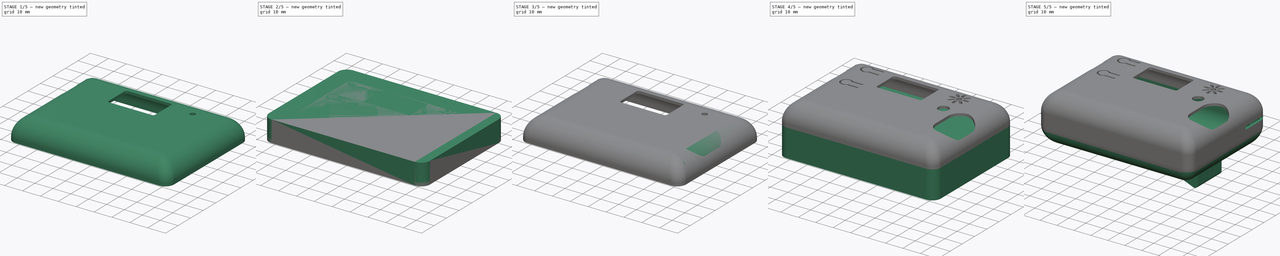
[diagram: build sequence overview — one tinted view per stage of 5, left to right]
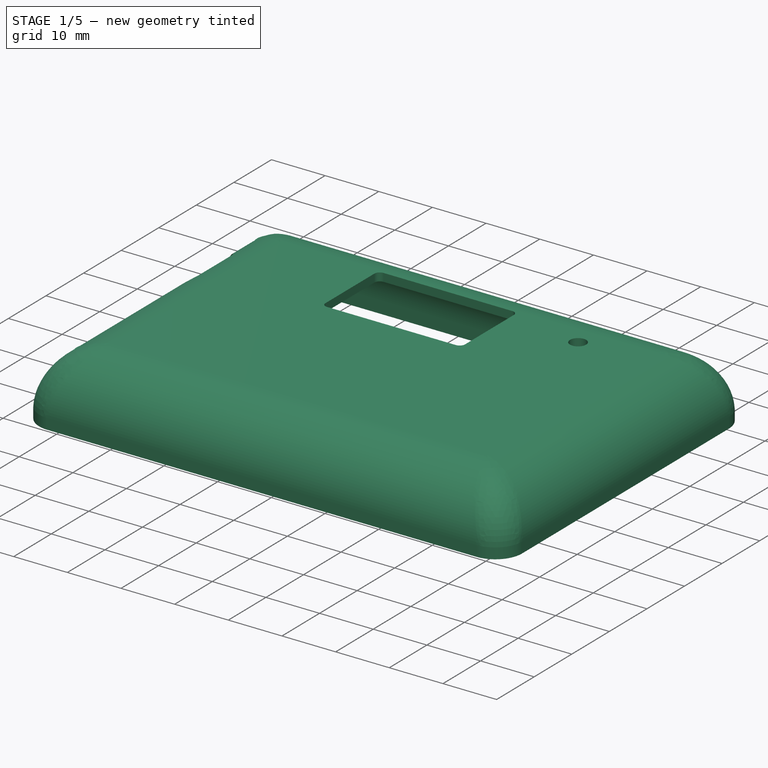
[diagram: stage 1 of 5 — iso view after this stage's code; geometry added in this stage tinted green]
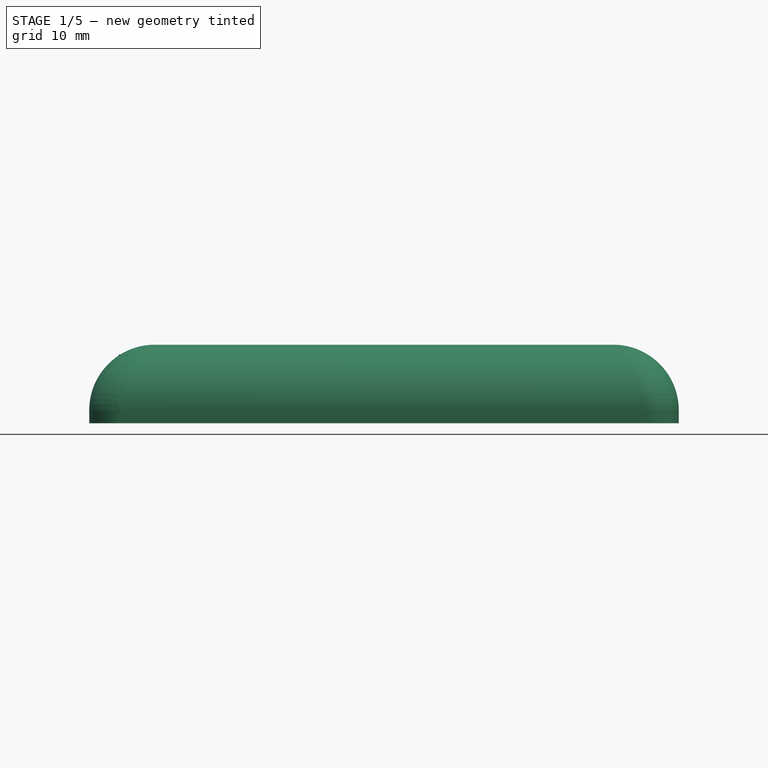
[diagram: stage 1 of 5 — front view after this stage's code; geometry added in this stage tinted green]
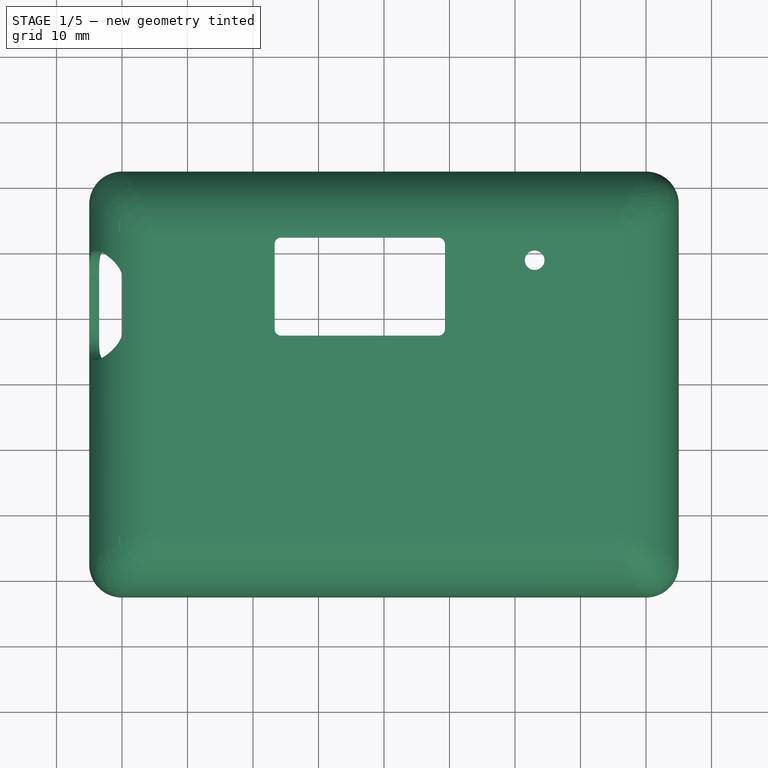
[diagram: stage 1 of 5 — top view after this stage's code; geometry added in this stage tinted green]
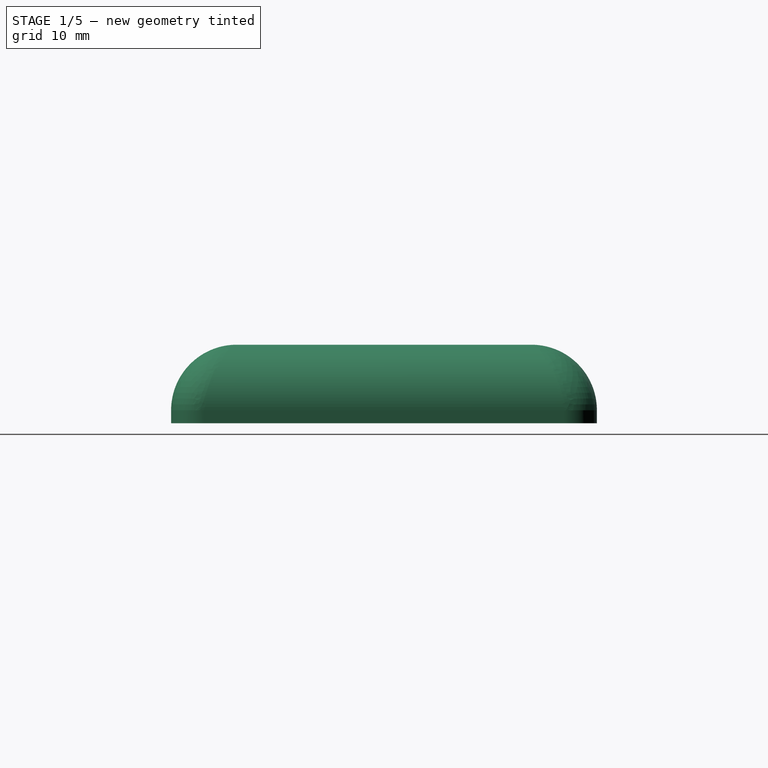
[diagram: stage 1 of 5 — right view after this stage's code; geometry added in this stage tinted green]
FCSTD DOCUMENT  (FreeCAD 1.0R39109 (Git))
Label: DC33_Cnet_Badge_Case
License: All rights reserved
LicenseURL: https://en.wikipedia.org/wiki/All_rights_reserved
objects: Sketcher::SketchObject×29, Part::Feature×27, App::Part×19, PartDesign::Pocket×19, PartDesign::SubShapeBinder×11, PartDesign::Pad×10, PartDesign::Body×4, PartDesign::Fillet×3, PartDesign::Thickness×3, PartDesign::PolarPattern×2, Part::Part2DObjectPython×2
note: 211 computed .brp shape members not serialized (recipe doc carries the construction recipe); baked Part::Feature solids carry a one-line shape summary decoded from their .brp

FEATURE [PartDesign::Body] Body001  label="Top Case - CNet Logo"
  AllowCompound = false
  Group = -> [Sketch005,Pad003,Binder003,Fillet001,Thickness001,Binder004,Sketch008,Pocket002,Sketch009,Pocket003,Binder005,Sketch010,Pocket004,Binder006,Sketch012,Pad004,Sketch013,Pocket006,Sketch016,Pocket007,PolarPattern,Sketch017,Pocket008,Sketch018,Pad007,ShapeString,Sketch022,Pocket014,Sketch023,Pocket015,Pocket016]
  Origin = -> Origin010
  Tip = -> Pocket016
FEATURE [Part::Feature] Part__Feature044  label="Vibra007"
  Placement = pos=(190.11,-69.45,1.595) rot=(0,0,1;1.5708rad)
  shape: bbox 10 x 10.97 x 3 mm, 7 faces (baked)
FEATURE [Part::Feature] Part__Feature045  label="PinSocket_2x03_P2.54mm_Vertical005"
  Placement = pos=(193.387,-82.475,1.595) rot=(0,0,1;0rad)
  shape: bbox 5.08 x 7.62 x 11.6 mm, 166 faces (baked)
FEATURE [Part::Feature] Part__Feature046  label="Buzz007"
  Placement = pos=(178.5,-61.69,1.595) rot=(0,0,1;1.5708rad)
  shape: bbox 12 x 12 x 13 mm, 9 faces (baked)
FEATURE [Part::Feature] Part__Feature047  label="HiLetGo_GPS_Antenna006"
  Placement = pos=(137.5,-94.5,1.595) rot=(0,0,1;0rad)
  shape: bbox 25 x 25 x 10 mm, 10 faces (baked)
FEATURE [Part::Feature] Part__Feature048  label="heltec_wifi_32_asm008"
  Placement = pos=(146.93,-68.07,3.595) rot=(1,0,0;1.5708rad)
  shape: bbox 51.75 x 25.3 x 16.01 mm, 1494 faces (baked)
FEATURE [Part::Feature] Part__Feature049  label="HiLetGo_GPS_Module006"
  Placement = pos=(169,-94.5,3.095) rot=(0,0,1;3.14159rad)
  shape: bbox 36 x 26 x 7 mm, 117 faces (baked)
FEATURE [Part::Feature] Part__Feature050  label="Tactile_Switch-13mm001"
  Placement = pos=(178.47,-74.55,1.595) rot=(0,0,1;3.14159rad)
  shape: bbox 9 x 6 x 13 mm, 89 faces (baked)
FEATURE [Part::Feature] Part__Feature051  label="LiPo006"
  Placement = pos=(152.5,-94.5,-6.085) rot=(0,1,0;3.14159rad)
  shape: bbox 40 x 25.99 x 12.99 mm, 14 faces (baked)
FEATURE [Part::Feature] Part__Feature052  label="DC33_Cnet_Badge_Main_PCB005"
  shape: bbox 101 x 58 x 1.51 mm, 76 faces (baked)
FEATURE [App::Part] DC33_Cnet_Badge_Main_006  label="DC33_Cnet_Badge_Main 006"
  Group = -> [Part__Feature044,Part__Feature045,Part__Feature046,Part__Feature047,Part__Feature048,Part__Feature049,Part__Feature050,Part__Feature051,Part__Feature052]
  Origin = -> Origin016
  Placement = pos=(-155.5,80.5,0) rot=(0,0,1;0rad)
FEATURE [PartDesign::SubShapeBinder] Binder007
  BindCopyOnChange = 0
  BindMode = 0
  ClaimChildren = false
  Context = -> Body003 [Binder007.]
  Fuse = false
  MakeFace = true
  OffsetFill = false
  OffsetIntersection = false
  OffsetJoinType = 0
  OffsetOpenResult = false
  PartialLoad = false
  Refine = true
  Relative = true
  Support = -> [DC33_Cnet_Badge_Main_007[Part__Feature061.Edge89,Part__Feature061.Edge143,Part__Feature061.Edge86,Part__Feature061.Edge114]]
  _Version = 2
FEATURE [PartDesign::SubShapeBinder] Binder008
  BindCopyOnChange = 0
  BindMode = 0
  ClaimChildren = false
  Context = -> Body003 [Binder008.]
  Fuse = false
  MakeFace = true
  OffsetFill = false
  OffsetIntersection = false
  OffsetJoinType = 0
  OffsetOpenResult = false
  PartialLoad = false
  Refine = true
  Relative = true
  Support = -> [DC33_Cnet_Badge_Main_007[heltec_wifi_32_asm003.Part__Feature057.Edge754,heltec_wifi_32_asm003.Part__Feature057.Edge749,heltec_wifi_32_asm003.Part__Feature057.Edge760,heltec_wifi_32_asm003.Part__Feature057.Edge758]]
  _Version = 2
FEATURE [PartDesign::SubShapeBinder] Binder009
  BindCopyOnChange = 0
  BindMode = 0
  ClaimChildren = false
  Context = -> Body003 [Binder009.]
  Fuse = false
  MakeFace = true
  OffsetFill = false
  OffsetIntersection = false
  OffsetJoinType = 0
  OffsetOpenResult = false
  PartialLoad = false
  Refine = true
  Relative = true
  Support = -> [DC33_Cnet_Badge_Main_007[Buzz002.Part__Feature055.Edge6]]
  _Version = 2
FEATURE [PartDesign::SubShapeBinder] Binder010
  BindCopyOnChange = 0
  BindMode = 0
  ClaimChildren = false
  Context = -> Body003 [Binder010.]
  Fuse = false
  MakeFace = true
  OffsetFill = false
  OffsetIntersection = false
  OffsetJoinType = 0
  OffsetOpenResult = false
  PartialLoad = false
  Refine = true
  Relative = true
  Support = -> [DC33_Cnet_Badge_Main_007[heltec_wifi_32_asm003.Part__Feature057.Edge96,heltec_wifi_32_asm003.Part__Feature057.Edge1239,heltec_wifi_32_asm003.Part__Feature057.Edge92,heltec_wifi_32_asm003.Part__Feature057.Edge1240]]
  _Version = 2
FEATURE [Part::Feature] Part__Feature053  label="Vibra008"
  shape: bbox 10.97 x 10 x 3 mm, 7 faces (baked)
FEATURE [Part::Feature] Part__Feature054  label="PinSocket_2x03_P254mm_Vertical001"
  shape: bbox 5.08 x 7.62 x 10.1 mm, 196 faces (baked)
FEATURE [Part::Feature] Part__Feature055  label="Buzz009"
  shape: bbox 12 x 12 x 13 mm, 9 faces (baked)
FEATURE [App::Part] Buzz002  label="Buzz008"
  Group = -> [Part__Feature055]
  Origin = -> Origin019
  Placement = pos=(178.5,-61.69,1.65) rot=(0,0,-1;1.5708rad)
FEATURE [Part::Feature] Part__Feature056  label="HiLetGo_GPS_Antenna008"
  shape: bbox 25 x 25 x 10 mm, 10 faces (baked)
FEATURE [App::Part] HiLetGo_GPS_Antenna001  label="HiLetGo_GPS_Antenna007"
  Group = -> [Part__Feature056]
  Origin = -> Origin020
  Placement = pos=(134,-94.5,1.65) rot=(0,0,1;0rad)
FEATURE [Part::Feature] Part__Feature057  label="heltec_wifi_32_asm009"
  shape: bbox 51.75 x 16.01 x 25.3 mm, 1494 faces (baked)
FEATURE [Part::Feature] Part__Feature058  label="HiLetGo_GPS_Module008"
  shape: bbox 36 x 26 x 7 mm, 117 faces (baked)
FEATURE [App::Part] HiLetGo_GPS_Module001  label="HiLetGo_GPS_Module007"
  Group = -> [Part__Feature058]
  Origin = -> Origin022
  Placement = pos=(167,-94.5,3.15) rot=(0,0,1;3.14159rad)
FEATURE [Part::Feature] Part__Feature059  label="LiPo008"
  shape: bbox 40 x 25.99 x 12.99 mm, 14 faces (baked)
FEATURE [App::Part] LiPo001  label="LiPo007"
  Group = -> [Part__Feature059]
  Origin = -> Origin023
  Placement = pos=(152.5,-94.5,-5.55) rot=(1,0,0;3.14159rad)
FEATURE [Part::Feature] Part__Feature060  label="LoRa_Antenna003"
  shape: bbox 67 x 9.815 x 8.5 mm, 26 faces (baked)
FEATURE [App::Part] LoRa_Antenna001  label="LoRa_Antenna002"
  Group = -> [Part__Feature060]
  Origin = -> Origin024
  Placement = pos=(164.5,-62,-6.05) rot=(0,1,0;3.14159rad)
FEATURE [Part::Feature] Part__Feature061  label="DC33_Cnet_Badge_Main_PCB006"
  shape: bbox 101 x 58 x 1.6 mm, 72 faces (baked)
FEATURE [App::Part] PinSocket_2x03_P2_54mm_Vertical001  label="PinSocket_2x03_P2.54mm_Vertical006"
  Group = -> [Part__Feature054]
  Origin = -> Origin018
  Placement = pos=(192.8,-77.62,1.65) rot=(0,0,1;0rad)
FEATURE [Part::Part2DObjectPython] ShapeString001  # Draft 2D object (typed FeaturePython)
  FontFile = D:/My Drive/Dev/Arduino/DC33_Cnet_Badge/Software/Fonts/seven_segment/Seven Segment.ttf
  Fuse = false
  Justification = 6
  JustificationReference = 0
  KeepLeftMargin = false
  MakeFace = true
  ObliqueAngle = 0
  Placement = pos=(-31.75,-19,0) rot=(0,0,1;0rad)
  ScaleToSize = true
  Size = 10
  String = CompuNet
  Tracking = 0
FEATURE [Sketcher::SketchObject] Sketch024
  ArcFitTolerance = 1e-06
  AttachmentOffset = pos=(0,0,2) rot=(0,0,1;0rad)
  AttachmentSupport = -> [XY_Plane026]
  FullyConstrained = true
  MakeInternals = false
  MapMode = 5
  Placement = pos=(0,0,2) rot=(0,0,1;0rad)
  sketch-geometry (12):
    g0: LineSegment StartX=-45 StartY=27.5 StartZ=0 EndX=-45 EndY=-27.5 EndZ=0
    g1: LineSegment StartX=-40 StartY=-32.5 StartZ=0 EndX=40 EndY=-32.5 EndZ=0
    g2: LineSegment StartX=45 StartY=-27.5 StartZ=0 EndX=45 EndY=27.5 EndZ=0
    g3: LineSegment StartX=40 StartY=32.5 StartZ=0 EndX=-40 EndY=32.5 EndZ=0
    g4: ArcOfCircle CenterX=-40 CenterY=27.5 CenterZ=0 NormalX=0 NormalY=0 NormalZ=1 AngleXU=0 Radius=5 StartAngle=1.5708 EndAngle=3.14159
    g5: GeomPoint [constr] X=-45 Y=32.5 Z=0
    g6: ArcOfCircle CenterX=40 CenterY=27.5 CenterZ=0 NormalX=0 NormalY=0 NormalZ=1 AngleXU=0 Radius=5 StartAngle=0 EndAngle=1.5708
    g7: GeomPoint [constr] X=45 Y=32.5 Z=0
    g8: ArcOfCircle CenterX=40 CenterY=-27.5 CenterZ=0 NormalX=0 NormalY=0 NormalZ=1 AngleXU=0 Radius=5 StartAngle=4.71239 EndAngle=6.28319
    g9: GeomPoint [constr] X=45 Y=-32.5 Z=0
    g10: ArcOfCircle CenterX=-40 CenterY=-27.5 CenterZ=0 NormalX=0 NormalY=0 NormalZ=1 AngleXU=0 Radius=5 StartAngle=3.14159 EndAngle=4.71239
    g11: GeomPoint [constr] X=-45 Y=-32.5 Z=0
  constraints (27):
    c: Vertical(g0)
    c: Vertical(g2)
    c: Horizontal(g1)
    c: Horizontal(g3)
    c: DistanceX(g5,g7) = 90
    c: DistanceY(g9,g7) = 65
    c: Symmetric(g5,g9,g-1)
    c: PointOnObject(g5,g0)
    c: PointOnObject(g5,g3)
    c: Tangent(g0,g4) = -1.5708
    c: Tangent(g3,g4) = -1.5708
    c: PointOnObject(g7,g3)
    c: PointOnObject(g7,g2)
    c: Tangent(g3,g6) = -1.5708
    c: Tangent(g2,g6) = -1.5708
    c: PointOnObject(g9,g2)
    c: PointOnObject(g9,g1)
    c: Tangent(g2,g8) = -1.5708
    c: Tangent(g1,g8) = -1.5708
    c: PointOnObject(g11,g1)
    c: PointOnObject(g11,g0)
    c: Tangent(g1,g10) = -1.5708
    c: Tangent(g0,g10) = -1.5708
    c: Radius(g4) = 5
    c: Equal(g4,g6)
    c: Equal(g4,g8)
    c: Equal(g4,g10)
FEATURE [PartDesign::Pad] Pad009
  Direction = (0,0,1)
  Length = 12
  Length2 = 10
  Profile = -> Sketch024
  ReferenceAxis = -> Sketch024 [N_Axis]
  Refine = true
  Suppressed = false
  Type = 0
FEATURE [PartDesign::Fillet] Fillet002
  Base = -> Pad009 [Edge10]
  BaseFeature = -> Pad009
  Radius = 10
  Refine = true
  SupportTransform = false
  Suppressed = false
  UseAllEdges = false
FEATURE [Sketcher::SketchObject] Sketch025
  ArcFitTolerance = 1e-06
  AttachmentSupport = -> [XY_Plane026]
  ExternalGeometry = -> [Binder008]
  FullyConstrained = true
  MakeInternals = false
  MapMode = 5
  sketch-geometry (12):
    g0: LineSegment StartX=-16.695 StartY=21.28 StartZ=0 EndX=-16.695 EndY=8.28 EndZ=0
    g1: LineSegment StartX=-15.695 StartY=7.28 StartZ=0 EndX=8.305 EndY=7.28 EndZ=0
    g2: LineSegment StartX=9.305 StartY=8.28 StartZ=0 EndX=9.305 EndY=21.28 EndZ=0
    g3: LineSegment StartX=8.305 StartY=22.28 StartZ=0 EndX=-15.695 EndY=22.28 EndZ=0
    g4: ArcOfCircle CenterX=-15.695 CenterY=21.28 CenterZ=0 NormalX=0 NormalY=0 NormalZ=1 AngleXU=0 Radius=1 StartAngle=1.5708 EndAngle=3.14159
    g5: GeomPoint [constr] X=-16.695 Y=22.28 Z=0
    g6: ArcOfCircle CenterX=8.305 CenterY=21.28 CenterZ=0 NormalX=0 NormalY=0 NormalZ=1 AngleXU=0 Radius=1 StartAngle=1.1e-15 EndAngle=1.5708
    g7: GeomPoint [constr] X=9.305 Y=22.28 Z=0
    g8: ArcOfCircle CenterX=8.305 CenterY=8.28 CenterZ=0 NormalX=0 NormalY=0 NormalZ=1 AngleXU=0 Radius=1 StartAngle=4.71239 EndAngle=6.28319
    g9: GeomPoint [constr] X=9.305 Y=7.28 Z=0
    g10: ArcOfCircle CenterX=-15.695 CenterY=8.28 CenterZ=0 NormalX=0 NormalY=0 NormalZ=1 AngleXU=0 Radius=1 StartAngle=3.14159 EndAngle=4.71239
    g11: GeomPoint [constr] X=-16.695 Y=7.28 Z=0
  constraints (26):
    c: Vertical(g0)
    c: Vertical(g2)
    c: Horizontal(g1)
    c: Horizontal(g3)
    c: Coincident(g5,g-6)
    c: Coincident(g9,g-5)
    c: PointOnObject(g5,g0)
    c: PointOnObject(g5,g3)
    c: Tangent(g0,g4) = -1.5708
    c: Tangent(g3,g4) = -1.5708
    c: PointOnObject(g7,g3)
    c: PointOnObject(g7,g2)
    c: Tangent(g3,g6) = -1.5708
    c: Tangent(g2,g6) = -1.5708
    c: PointOnObject(g9,g2)
    c: PointOnObject(g9,g1)
    c: Tangent(g2,g8) = -1.5708
    c: Tangent(g1,g8) = -1.5708
    c: PointOnObject(g11,g1)
    c: PointOnObject(g11,g0)
    c: Tangent(g1,g10) = -1.5708
    c: Tangent(g0,g10) = -1.5708
    c: Radius(g4) = 1
    c: Equal(g4,g6)
    c: Equal(g4,g10)
    c: Equal(g4,g8)
FEATURE [Sketcher::SketchObject] Sketch026
  ArcFitTolerance = 1e-06
  AttachmentOffset = pos=(0,0,-35) rot=(0,0,1;0rad)
  AttachmentSupport = -> [YZ_Plane026]
  FullyConstrained = true
  MakeInternals = false
  MapMode = 5
  Placement = pos=(-35,0,0) rot=(0.57735,0.57735,0.57735;2.0944rad)
  sketch-geometry (4):
    g0: ArcOfCircle CenterX=16 CenterY=8.35 CenterZ=0 NormalX=0 NormalY=0 NormalZ=1 AngleXU=0 Radius=4.35 StartAngle=4.71239 EndAngle=7.85398
    g1: ArcOfCircle CenterX=8 CenterY=8.35 CenterZ=0 NormalX=0 NormalY=0 NormalZ=1 AngleXU=0 Radius=4.35 StartAngle=1.5708 EndAngle=4.71239
    g2: LineSegment StartX=16 StartY=4 StartZ=0 EndX=8 EndY=4 EndZ=0
    g3: LineSegment StartX=16 StartY=12.7 StartZ=0 EndX=8 EndY=12.7 EndZ=0
  constraints (10):
    c: Tangent(g0,g2) = 1.5708
    c: Tangent(g0,g3) = -1.5708
    c: Tangent(g1,g2) = 1.5708
    c: Tangent(g1,g3) = -1.5708
    c: Equal(g0,g1)
    c: Horizontal(g3)
    c: Distance(g3,g3) = 8
    c: Radius(g1) = 4.35
    c: DistanceX(g-1,g1) = 8
    c: DistanceY(g-1,g1) = 4
FEATURE [Sketcher::SketchObject] Sketch027
  ArcFitTolerance = 1e-06
  AttachmentSupport = -> [XY_Plane026]
  ExternalGeometry = -> [Binder009]
  FullyConstrained = true
  MakeInternals = false
  MapMode = 5
  sketch-geometry (1):
    g0: Circle CenterX=23 CenterY=18.81 CenterZ=0 NormalX=0 NormalY=0 NormalZ=1 AngleXU=0 Radius=1.5
  constraints (2):
    c: Coincident(g0,g-3)
    c: Equal(g0,g-3)
FEATURE [Sketcher::SketchObject] Sketch033
  ArcFitTolerance = 1e-06
  FullyConstrained = true
  MakeInternals = false
  MapMode = 5
  Placement = pos=(0,0,14) rot=(0,0,1;0rad)
  sketch-geometry (1):
    g0: Circle CenterX=23 CenterY=6 CenterZ=0 NormalX=0 NormalY=0 NormalZ=1 AngleXU=0 Radius=3
  constraints (3):
    c: DistanceX(g-1,g0) = 23
    c: DistanceY(g-1,g0) = 6
    c: Diameter(g0) = 6
FEATURE [Sketcher::SketchObject] Sketch034
  ArcFitTolerance = 1e-06
  AttachmentSupport = -> [XY_Plane026]
  FullyConstrained = true
  MakeInternals = false
  MapMode = 5
  sketch-geometry (4):
    g0: ArcOfCircle CenterX=36.5 CenterY=0.5 CenterZ=0 NormalX=0 NormalY=0 NormalZ=1 AngleXU=0 Radius=7 StartAngle=1e-16 EndAngle=3.14159
    g1: ArcOfCircle CenterX=36.5 CenterY=-9.5 CenterZ=0 NormalX=0 NormalY=0 NormalZ=1 AngleXU=0 Radius=7 StartAngle=3.14159 EndAngle=6.28319
    g2: LineSegment StartX=43.5 StartY=0.5 StartZ=0 EndX=43.5 EndY=-9.5 EndZ=0
    g3: LineSegment StartX=29.5 StartY=0.5 StartZ=0 EndX=29.5 EndY=-9.5 EndZ=0
  constraints (10):
    c: Tangent(g0,g2) = 1.5708
    c: Tangent(g0,g3) = -1.5708
    c: Tangent(g1,g2) = 1.5708
    c: Tangent(g1,g3) = -1.5708
    c: Equal(g0,g1)
    c: Radius(g0) = 7
    c: Distance(g3,g3) = 10
    c: Vertical(g3)
    c: Distance(g0,g-2) = 36.5
    c: DistanceY(g1,g-1) = 9.5
FEATURE [PartDesign::Thickness] Thickness002
  Base = -> Fillet002 [Face4]
  BaseFeature = -> Fillet002
  Intersection = false
  Join = 0
  Mode = 0
  Refine = true
  Reversed = true
  SupportTransform = false
  Suppressed = false
  Value = 1.5
FEATURE [PartDesign::Pocket] Pocket017
  BaseFeature = -> Thickness002
  Direction = (0,0,-1)
  Length = 5
  Length2 = 5
  Profile = -> Sketch025
  ReferenceAxis = -> Sketch025 [N_Axis]
  Refine = true
  Reversed = true
  Suppressed = false
  Type = 1
FEATURE [PartDesign::Pocket] Pocket018
  BaseFeature = -> Pocket017
  Direction = (-1,0,0)
  Length = 5
  Length2 = 5
  Profile = -> Sketch026
  ReferenceAxis = -> Sketch026 [N_Axis]
  Refine = true
  Suppressed = false
  Type = 1
FEATURE [PartDesign::Pocket] Pocket019
  BaseFeature = -> Pocket018
  Direction = (0,0,-1)
  Length = 5
  Length2 = 5
  Profile = -> Sketch027
  ReferenceAxis = -> Sketch027 [N_Axis]
  Refine = true
  Reversed = true
  Suppressed = false
  Type = 1
FEATURE [Sketcher::SketchObject] Sketch028
  ArcFitTolerance = 1e-06
  AttachmentSupport = -> [Pocket018]
  ExternalGeometry = -> [Binder007]
  FullyConstrained = true
  MakeInternals = false
  MapMode = 5
  Placement = pos=(0,0,12.5) rot=(1,0,0;3.14159rad)
  sketch-geometry (4):
    g0: Circle CenterX=-37.5 CenterY=24 CenterZ=0 NormalX=0 NormalY=0 NormalZ=1 AngleXU=0 Radius=3
    g1: Circle CenterX=37 CenterY=24 CenterZ=0 NormalX=0 NormalY=0 NormalZ=1 AngleXU=0 Radius=3
    g2: Circle CenterX=37 CenterY=-24 CenterZ=0 NormalX=0 NormalY=0 NormalZ=1 AngleXU=0 Radius=3
    g3: Circle CenterX=-37.5 CenterY=-24 CenterZ=0 NormalX=0 NormalY=0 NormalZ=1 AngleXU=0 Radius=3
  constraints (8):
    c: Coincident(g0,g-4)
    c: Coincident(g1,g-3)
    c: Coincident(g2,g-5)
    c: Coincident(g3,g-6)
    c: Diameter(g0) = 6
    c: Equal(g0,g1)
    c: Equal(g0,g2)
    c: Equal(g0,g3)
FEATURE [PartDesign::Pad] Pad010
  BaseFeature = -> Pocket019
  Direction = (0,0,-1)
  Length = 10
  Length2 = 10
  Profile = -> Sketch028
  ReferenceAxis = -> Sketch028 [N_Axis]
  Refine = true
  Suppressed = false
  Type = 0
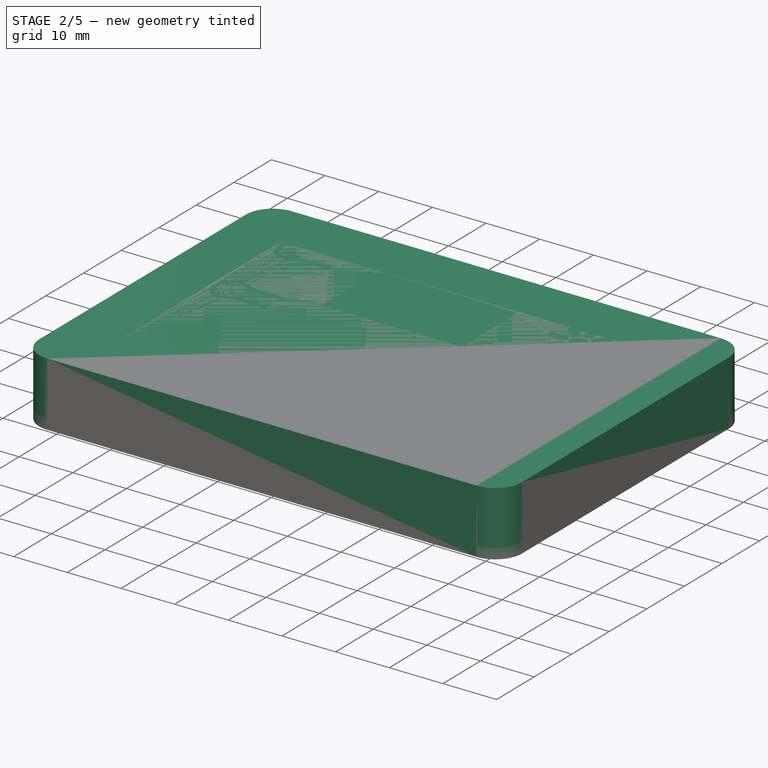
[diagram: stage 2 of 5 — iso view after this stage's code; geometry added in this stage tinted green]
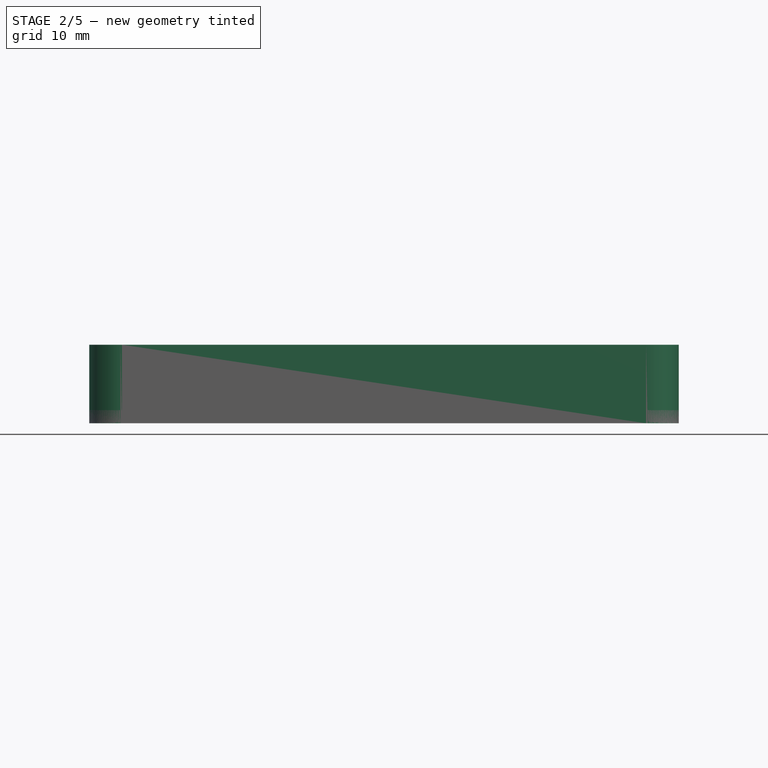
[diagram: stage 2 of 5 — front view after this stage's code; geometry added in this stage tinted green]
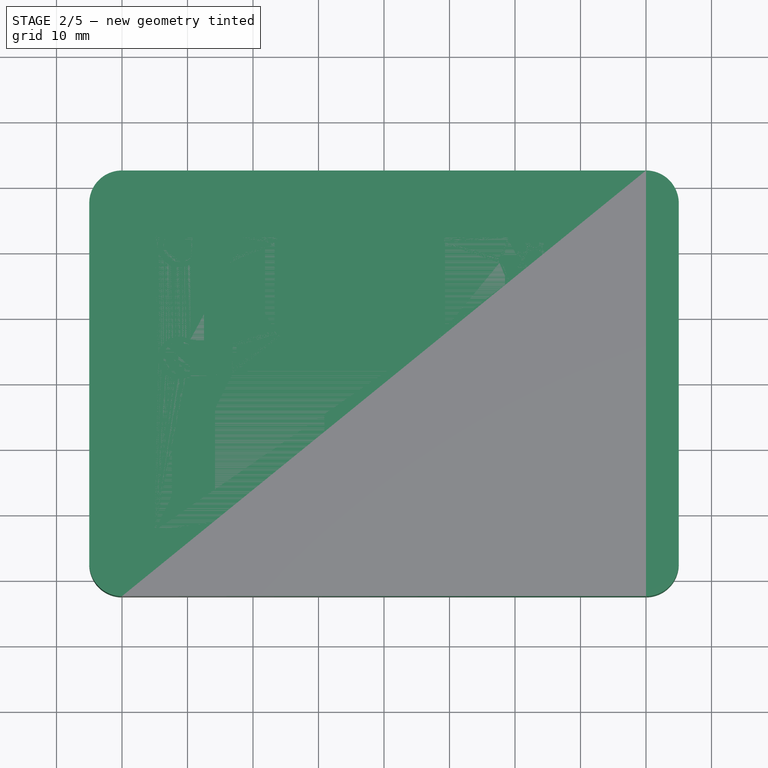
[diagram: stage 2 of 5 — top view after this stage's code; geometry added in this stage tinted green]
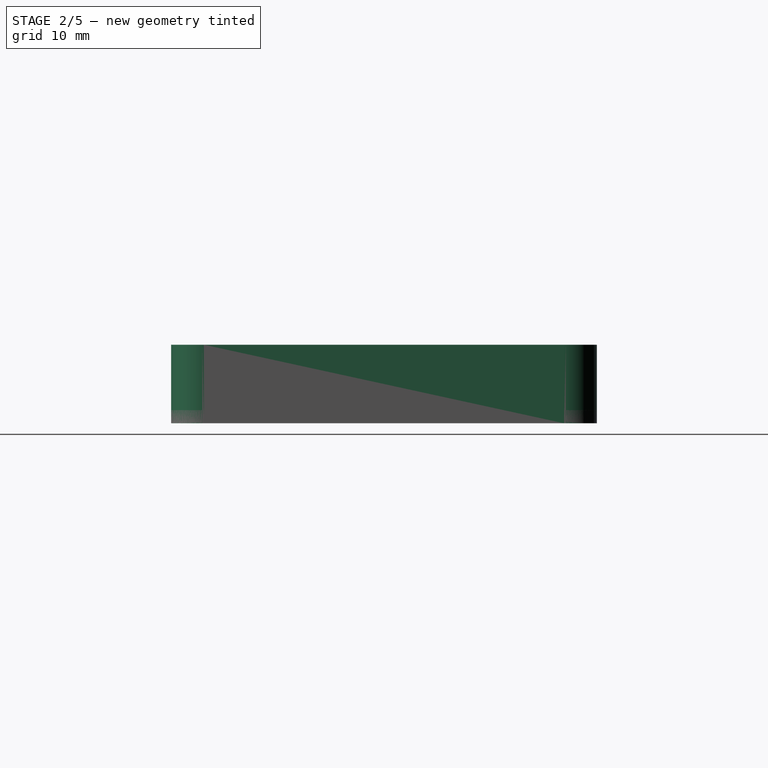
[diagram: stage 2 of 5 — right view after this stage's code; geometry added in this stage tinted green]
FEATURE [PartDesign::SubShapeBinder] Binder002
  BindCopyOnChange = 0
  BindMode = 0
  ClaimChildren = false
  Context = -> Body [Binder002.]
  Fuse = false
  MakeFace = true
  OffsetFill = false
  OffsetIntersection = false
  OffsetJoinType = 0
  OffsetOpenResult = false
  PartialLoad = false
  Refine = true
  Relative = true
  Support = -> [DC33_Cnet_Badge_Main_1[Part__Feature008.Edge47,Part__Feature008.Edge76,Part__Feature008.Edge22,Part__Feature008.Edge19]]
  _Version = 2
FEATURE [Sketcher::SketchObject] Sketch005
  ArcFitTolerance = 1e-06
  AttachmentOffset = pos=(0,0,2) rot=(0,0,1;0rad)
  AttachmentSupport = -> [XY_Plane010]
  FullyConstrained = true
  MakeInternals = false
  MapMode = 5
  Placement = pos=(0,0,2) rot=(0,0,1;0rad)
  sketch-geometry (12):
    g0: LineSegment StartX=-45 StartY=27.5 StartZ=0 EndX=-45 EndY=-27.5 EndZ=0
    g1: LineSegment StartX=-40 StartY=-32.5 StartZ=0 EndX=40 EndY=-32.5 EndZ=0
    g2: LineSegment StartX=45 StartY=-27.5 StartZ=0 EndX=45 EndY=27.5 EndZ=0
    g3: LineSegment StartX=40 StartY=32.5 StartZ=0 EndX=-40 EndY=32.5 EndZ=0
    g4: ArcOfCircle CenterX=-40 CenterY=27.5 CenterZ=0 NormalX=0 NormalY=0 NormalZ=1 AngleXU=0 Radius=5 StartAngle=1.5708 EndAngle=3.14159
    g5: GeomPoint [constr] X=-45 Y=32.5 Z=0
    g6: ArcOfCircle CenterX=40 CenterY=27.5 CenterZ=0 NormalX=0 NormalY=0 NormalZ=1 AngleXU=0 Radius=5 StartAngle=0 EndAngle=1.5708
    g7: GeomPoint [constr] X=45 Y=32.5 Z=0
    g8: ArcOfCircle CenterX=40 CenterY=-27.5 CenterZ=0 NormalX=0 NormalY=0 NormalZ=1 AngleXU=0 Radius=5 StartAngle=4.71239 EndAngle=6.28319
    g9: GeomPoint [constr] X=45 Y=-32.5 Z=0
    g10: ArcOfCircle CenterX=-40 CenterY=-27.5 CenterZ=0 NormalX=0 NormalY=0 NormalZ=1 AngleXU=0 Radius=5 StartAngle=3.14159 EndAngle=4.71239
    g11: GeomPoint [constr] X=-45 Y=-32.5 Z=0
  constraints (27):
    c: Vertical(g0)
    c: Vertical(g2)
    c: Horizontal(g1)
    c: Horizontal(g3)
    c: DistanceX(g5,g7) = 90
    c: DistanceY(g9,g7) = 65
    c: Symmetric(g5,g9,g-1)
    c: PointOnObject(g5,g0)
    c: PointOnObject(g5,g3)
    c: Tangent(g0,g4) = -1.5708
    c: Tangent(g3,g4) = -1.5708
    c: PointOnObject(g7,g3)
    c: PointOnObject(g7,g2)
    c: Tangent(g3,g6) = -1.5708
    c: Tangent(g2,g6) = -1.5708
    c: PointOnObject(g9,g2)
    c: PointOnObject(g9,g1)
    c: Tangent(g2,g8) = -1.5708
    c: Tangent(g1,g8) = -1.5708
    c: PointOnObject(g11,g1)
    c: PointOnObject(g11,g0)
    c: Tangent(g1,g10) = -1.5708
    c: Tangent(g0,g10) = -1.5708
    c: Radius(g4) = 5
    c: Equal(g4,g6)
    c: Equal(g4,g8)
    c: Equal(g4,g10)
FEATURE [PartDesign::Pad] Pad003
  Direction = (0,0,1)
  Length = 12
  Length2 = 10
  Profile = -> Sketch005
  ReferenceAxis = -> Sketch005 [N_Axis]
  Refine = true
  Suppressed = false
  Type = 0
FEATURE [Sketcher::SketchObject] Sketch029
  ArcFitTolerance = 1e-06
  AttachmentSupport = -> [Pad010]
  ExternalGeometry = -> [Binder007]
  FullyConstrained = true
  MakeInternals = false
  MapMode = 5
  Placement = pos=(0,0,2.5) rot=(1,0,0;3.14159rad)
  sketch-geometry (4):
    g0: Circle CenterX=-37.5 CenterY=24 CenterZ=0 NormalX=0 NormalY=0 NormalZ=1 AngleXU=0 Radius=2
    g1: Circle CenterX=37 CenterY=24 CenterZ=0 NormalX=0 NormalY=0 NormalZ=1 AngleXU=0 Radius=2
    g2: Circle CenterX=37 CenterY=-24 CenterZ=0 NormalX=0 NormalY=0 NormalZ=1 AngleXU=0 Radius=2
    g3: Circle CenterX=-37.5 CenterY=-24 CenterZ=0 NormalX=0 NormalY=0 NormalZ=1 AngleXU=0 Radius=2
  constraints (8):
    c: Coincident(g0,g-4)
    c: Coincident(g1,g-3)
    c: Coincident(g2,g-6)
    c: Coincident(g3,g-5)
    c: Diameter(g0) = 4
    c: Equal(g0,g1)
    c: Equal(g0,g2)
    c: Equal(g0,g3)
FEATURE [PartDesign::Pocket] Pocket020
  BaseFeature = -> Pad010
  Direction = (0,0,1)
  Length = 3
  Length2 = 5
  Profile = -> Sketch029
  ReferenceAxis = -> Sketch029 [N_Axis]
  Refine = true
  Suppressed = false
  Type = 0
FEATURE [Sketcher::SketchObject] Sketch030
  ArcFitTolerance = 1e-06
  AttachmentSupport = -> [Pocket020]
  ExternalGeometry = -> [Pocket020]
  FullyConstrained = true
  MakeInternals = false
  MapMode = 5
  Placement = pos=(0,0,14) rot=(0,0,1;0rad)
  sketch-geometry (4):
    g0: ArcOfCircle CenterX=23 CenterY=23.56 CenterZ=0 NormalX=0 NormalY=0 NormalZ=1 AngleXU=0 Radius=0.75 StartAngle=-1.8e-15 EndAngle=3.14159
    g1: ArcOfCircle CenterX=23 CenterY=21.56 CenterZ=0 NormalX=0 NormalY=0 NormalZ=1 AngleXU=0 Radius=0.75 StartAngle=3.14159 EndAngle=6.28319
    g2: LineSegment StartX=23.75 StartY=23.56 StartZ=0 EndX=23.75 EndY=21.56 EndZ=0
    g3: LineSegment StartX=22.25 StartY=23.56 StartZ=0 EndX=22.25 EndY=21.56 EndZ=0
  constraints (10):
    c: Tangent(g0,g2) = 1.5708
    c: Tangent(g0,g3) = -1.5708
    c: Tangent(g1,g2) = 1.5708
    c: Tangent(g1,g3) = -1.5708
    c: Equal(g0,g1)
    c: Vertical(g3)
    c: Vertical(g1,g-3)
    c: Radius(g0) = 0.75
    c: Distance(g-3,g1) = 2.75
    c: Distance(g2,g2) = 2
FEATURE [PartDesign::Pocket] Pocket021
  BaseFeature = -> Pocket020
  Direction = (0,0,-1)
  Length = 2
  Length2 = 5
  Profile = -> Sketch030
  ReferenceAxis = -> Sketch030 [N_Axis]
  Refine = true
  Suppressed = false
  Type = 0
FEATURE [PartDesign::PolarPattern] PolarPattern001
  Angle = 360
  Axis = -> Pocket021 [Edge76]
  BaseFeature = -> Pocket021
  Mode = 0
  Occurrences = 8
  Offset = 120
  Originals = -> [Pocket021]
  Refine = true
  Suppressed = false
  TransformMode = 0
FEATURE [Sketcher::SketchObject] Sketch031
  ArcFitTolerance = 1e-06
  AttachmentSupport = -> [PolarPattern001]
  ExternalGeometry = -> [Binder010]
  FullyConstrained = true
  MakeInternals = false
  MapMode = 5
  Placement = pos=(0,0,12.5) rot=(1,0,0;3.14159rad)
  sketch-geometry (16):
    g0: LineSegment StartX=-29.195 StartY=-5.38 StartZ=0 EndX=-23.195 EndY=-5.38 EndZ=0
    g1: LineSegment StartX=-23.195 StartY=-2.38 StartZ=0 EndX=-29.195 EndY=-2.38 EndZ=0
    g2: ArcOfCircle CenterX=-31.195 CenterY=-3.88 CenterZ=0 NormalX=0 NormalY=0 NormalZ=1 AngleXU=0 Radius=2.5 StartAngle=0.643501 EndAngle=5.63968
    g3: LineSegment StartX=-29.195 StartY=-6.38 StartZ=0 EndX=-23.195 EndY=-6.38 EndZ=0
    g4: LineSegment StartX=-23.195 StartY=-1.38 StartZ=0 EndX=-29.195 EndY=-1.38 EndZ=0
    g5: ArcOfCircle CenterX=-31.2717 CenterY=-3.88 CenterZ=0 NormalX=0 NormalY=0 NormalZ=1 AngleXU=0 Radius=3.25 StartAngle=0.877636 EndAngle=5.40555
    g6: ArcOfCircle CenterX=-24.061 CenterY=-5.88 CenterZ=0 NormalX=0 NormalY=0 NormalZ=1 AngleXU=0 Radius=1 StartAngle=5.75959 EndAngle=6.80678
    g7: ArcOfCircle CenterX=-24.061 CenterY=-1.88 CenterZ=0 NormalX=0 NormalY=0 NormalZ=1 AngleXU=0 Radius=1 StartAngle=5.75959 EndAngle=6.80678
    g8: ArcOfCircle CenterX=-31.195 CenterY=-20.98 CenterZ=0 NormalX=0 NormalY=0 NormalZ=1 AngleXU=0 Radius=2.5 StartAngle=0.643501 EndAngle=5.63968
    g9: LineSegment StartX=-29.195 StartY=-19.48 StartZ=0 EndX=-23.195 EndY=-19.48 EndZ=0
    g10: LineSegment StartX=-29.195 StartY=-22.48 StartZ=0 EndX=-23.195 EndY=-22.48 EndZ=0
    g11: LineSegment StartX=-23.195 StartY=-23.48 StartZ=0 EndX=-29.195 EndY=-23.48 EndZ=0
    g12: LineSegment StartX=-23.195 StartY=-18.48 StartZ=0 EndX=-29.195 EndY=-18.48 EndZ=0
    g13: ArcOfCircle CenterX=-31.2717 CenterY=-20.98 CenterZ=0 NormalX=0 NormalY=0 NormalZ=1 AngleXU=0 Radius=3.25 StartAngle=0.877636 EndAngle=5.40555
    g14: ArcOfCircle CenterX=-24.061 CenterY=-18.98 CenterZ=0 NormalX=0 NormalY=0 NormalZ=1 AngleXU=0 Radius=1 StartAngle=5.75959 EndAngle=6.80678
    g15: ArcOfCircle CenterX=-24.061 CenterY=-22.98 CenterZ=0 NormalX=0 NormalY=0 NormalZ=1 AngleXU=0 Radius=1 StartAngle=5.75959 EndAngle=6.80678
  constraints (54):
    c: Horizontal(g0)
    c: Horizontal(g1)
    c: Vertical(g1,g0)
    c: Distance(g0,g1) = 3
    c: Diameter(g2) = 5
    c: Coincident(g2,g0)
    c: Coincident(g2,g1)
    c: Distance(g1,g1) = 6
    c: Coincident(g2,g-4)
    c: Vertical(g1,g0)
    c: Horizontal(g3)
    c: Vertical(g3,g0)
    c: Vertical(g3,g0)
    c: Distance(g0,g3) = 1
    c: Horizontal(g4)
    c: Vertical(g1,g4)
    c: Vertical(g4,g1)
    c: Distance(g1,g4) = 1
    c: Diameter(g5) = 6.5
    c: Coincident(g5,g3)
    c: Coincident(g5,g4)
    c: Diameter(g6) = 2
    c: Diameter(g7) = 2
    c: Coincident(g6,g0)
    c: Coincident(g6,g3)
    c: Coincident(g7,g1)
    c: Coincident(g7,g4)
    c: Coincident(g8,g-6)
    c: Equal(g2,g8)
    c: Horizontal(g9)
    c: Horizontal(g10)
    c: Vertical(g10,g9)
    c: Vertical(g9,g10)
    c: Distance(g9,g9) = 6
    c: Distance(g10,g9) = 3
    c: Coincident(g8,g10)
    c: Coincident(g8,g9)
    c: Horizontal(g11)
    c: Horizontal(g12)
    c: Vertical(g12,g9)
    c: Vertical(g11,g8)
    c: Vertical(g8,g12)
    c: Distance(g9,g12) = 1
    c: Distance(g11,g10) = 1
    c: Vertical(g11,g10)
    c: Diameter(g13) = 6.5
    c: Diameter(g14) = 2
    c: Diameter(g15) = 2
    c: Coincident(g14,g9)
    c: Coincident(g14,g12)
    c: Coincident(g13,g12)
    c: Coincident(g13,g11)
    c: Coincident(g15,g11)
    c: Coincident(g15,g10)
FEATURE [PartDesign::Pocket] Pocket022
  BaseFeature = -> PolarPattern001
  Direction = (0,0,1)
  Length = 5
  Length2 = 5
  Profile = -> Sketch031
  ReferenceAxis = -> Sketch031 [N_Axis]
  Refine = true
  Suppressed = false
  Type = 1
FEATURE [Sketcher::SketchObject] Sketch032
  ArcFitTolerance = 1e-06
  AttachmentSupport = -> [Pocket022]
  ExternalGeometry = -> [Binder010]
  FullyConstrained = true
  MakeInternals = false
  MapMode = 5
  Placement = pos=(0,0,12.5) rot=(1,0,0;3.14159rad)
  sketch-geometry (2):
    g0: Circle CenterX=-31.195 CenterY=-3.88 CenterZ=0 NormalX=0 NormalY=0 NormalZ=1 AngleXU=0 Radius=1.5
    g1: Circle CenterX=-31.195 CenterY=-20.98 CenterZ=0 NormalX=0 NormalY=0 NormalZ=1 AngleXU=0 Radius=1.5
  constraints (4):
    c: Coincident(g0,g-4)
    c: Coincident(g1,g-6)
    c: Diameter(g0) = 3
    c: Diameter(g1) = 3
FEATURE [PartDesign::Pad] Pad011
  BaseFeature = -> Pocket022
  Direction = (0,0,-1)
  Length = 4
  Length2 = 10
  Profile = -> Sketch032
  ReferenceAxis = -> Sketch032 [N_Axis]
  Refine = true
  Suppressed = false
  Type = 0
FEATURE [PartDesign::Pocket] Pocket023
  BaseFeature = -> Pad011
  Direction = (0,0,-1)
  Length = 5
  Length2 = 5
  Profile = -> Sketch033
  ReferenceAxis = -> Sketch033 [N_Axis]
  Refine = true
  Suppressed = false
  Type = 2
FEATURE [PartDesign::Pocket] Pocket024
  BaseFeature = -> Pocket023
  Direction = (0,0,-1)
  Length = 5
  Length2 = 5
  Profile = -> Sketch034
  ReferenceAxis = -> Sketch034 [N_Axis]
  Refine = true
  Reversed = true
  Suppressed = false
  Type = 1
FEATURE [PartDesign::Body] Body003  label="Top Case - No Logo"
  AllowCompound = false
  Group = -> [Sketch024,Pad009,Binder007,Fillet002,Thickness002,Binder008,Sketch025,Pocket017,Sketch026,Pocket018,Binder009,Sketch027,Pocket019,Binder010,Sketch028,Pad010,Sketch029,Pocket020,Sketch030,Pocket021,PolarPattern001,Sketch031,Pocket022,Sketch032,Pad011,ShapeString001,Sketch033,Pocket023,Sketch034,Pocket024]
  Origin = -> Origin026
  Tip = -> Pocket024
FEATURE [App::Part] Vibra002  label="Vibra009"
  Group = -> [Part__Feature053]
  Origin = -> Origin017
  Placement = pos=(179,-75.5,1.65) rot=(0,0,1;3.14159rad)
FEATURE [App::Part] heltec_wifi_32_asm003  label="heltec_wifi_32_asm010"
  Group = -> [Part__Feature057]
  Origin = -> Origin021
  Placement = pos=(146.68,-68.07,4.15) rot=(1,0,0;1.5708rad)
FEATURE [App::Part] DC33_Cnet_Badge_Main_007  label="DC33_Cnet_Badge_Main 007"
  Group = -> [Vibra002,PinSocket_2x03_P2_54mm_Vertical001,Buzz002,HiLetGo_GPS_Antenna001,heltec_wifi_32_asm003,HiLetGo_GPS_Module001,LiPo001,LoRa_Antenna001,Part__Feature061]
  Origin = -> Origin025
  Placement = pos=(-155.5,80.5,0) rot=(0,0,1;0rad)
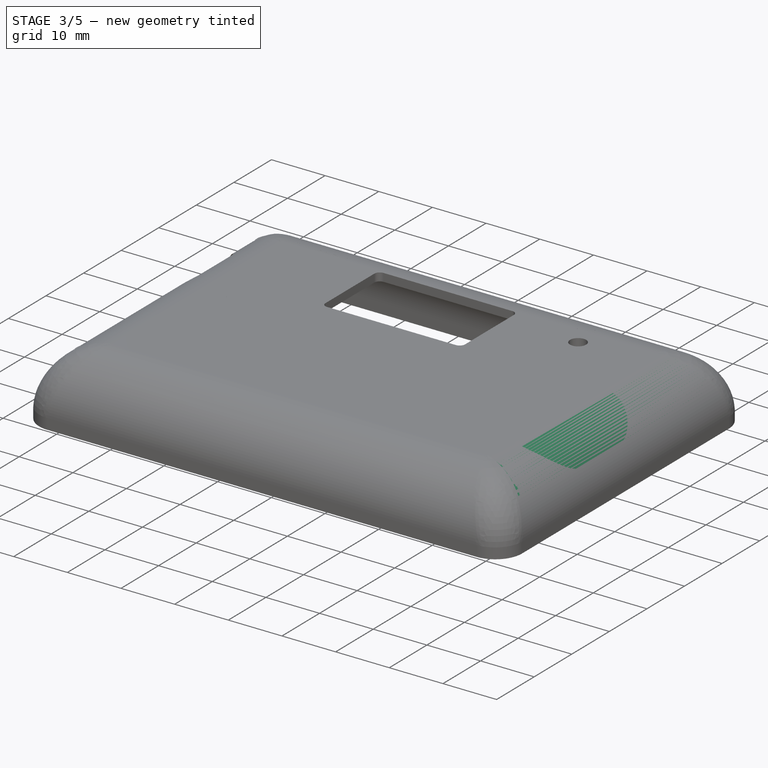
[diagram: stage 3 of 5 — iso view after this stage's code; geometry added in this stage tinted green]
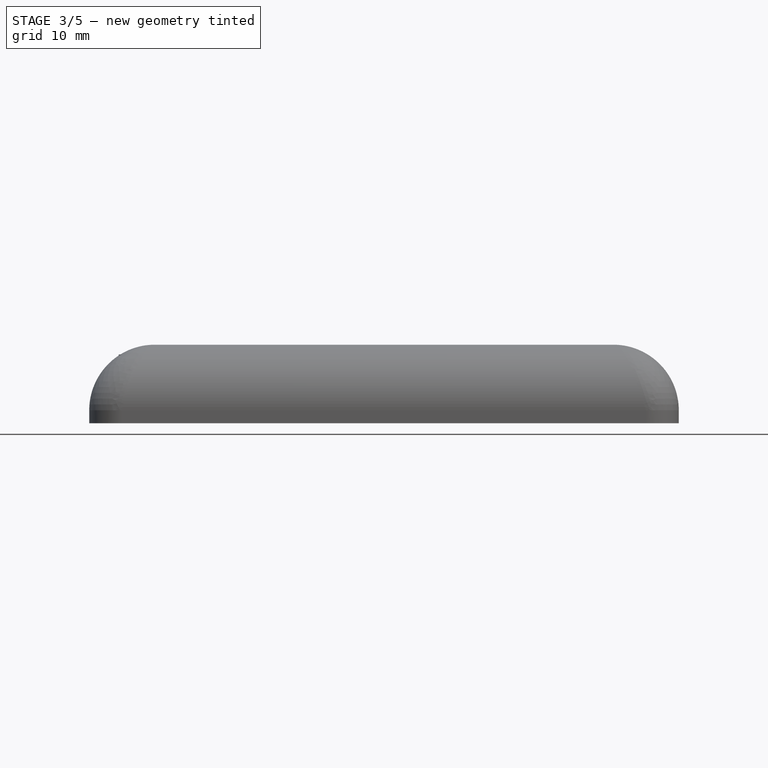
[diagram: stage 3 of 5 — front view after this stage's code; geometry added in this stage tinted green]
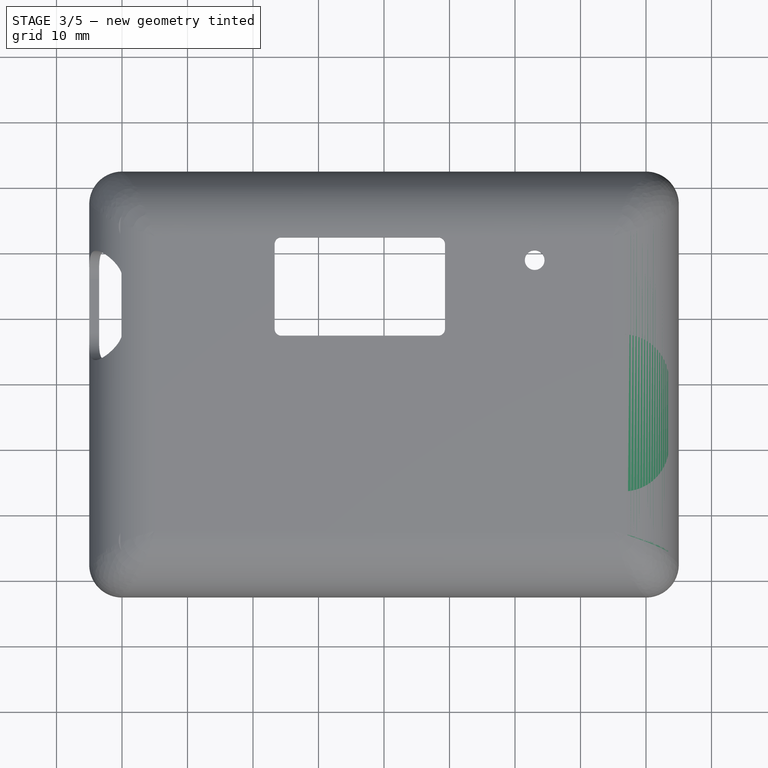
[diagram: stage 3 of 5 — top view after this stage's code; geometry added in this stage tinted green]
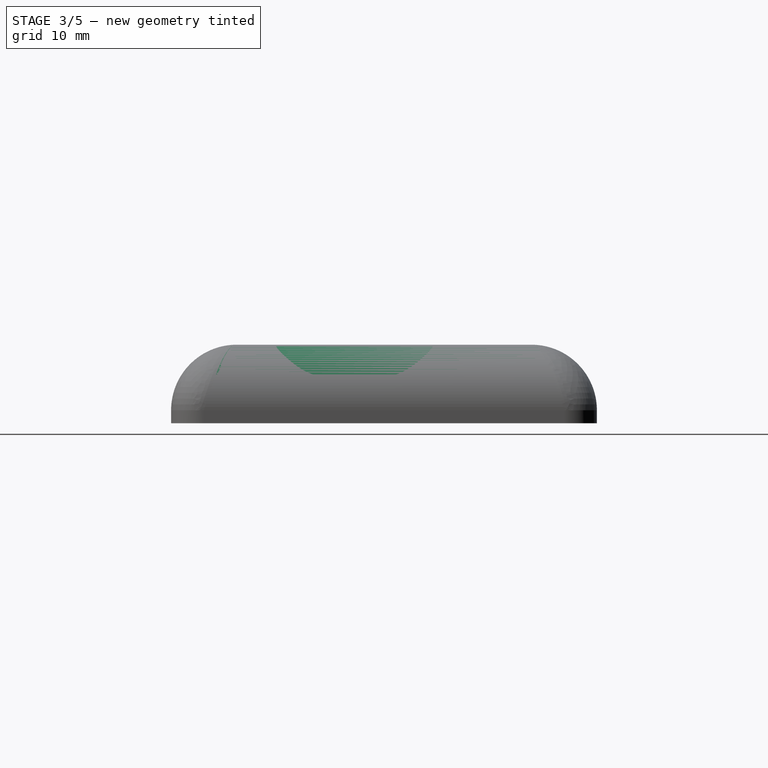
[diagram: stage 3 of 5 — right view after this stage's code; geometry added in this stage tinted green]
FEATURE [PartDesign::SubShapeBinder] Binder003
  BindCopyOnChange = 0
  BindMode = 0
  ClaimChildren = false
  Context = -> Body001 [Binder003.]
  Fuse = false
  MakeFace = true
  OffsetFill = false
  OffsetIntersection = false
  OffsetJoinType = 0
  OffsetOpenResult = false
  PartialLoad = false
  Refine = true
  Relative = true
  Support = -> [DC33_Cnet_Badge_Main_1[Part__Feature008.Edge89,Part__Feature008.Edge143,Part__Feature008.Edge86,Part__Feature008.Edge114]]
  _Version = 2
FEATURE [PartDesign::Fillet] Fillet001
  Base = -> Pad003 [Edge10]
  BaseFeature = -> Pad003
  Radius = 10
  Refine = true
  SupportTransform = false
  Suppressed = false
  UseAllEdges = false
FEATURE [PartDesign::Thickness] Thickness001
  Base = -> Fillet001 [Face4]
  BaseFeature = -> Fillet001
  Intersection = false
  Join = 0
  Mode = 0
  Refine = true
  Reversed = true
  SupportTransform = false
  Suppressed = false
  Value = 1.5
FEATURE [PartDesign::SubShapeBinder] Binder004
  BindCopyOnChange = 0
  BindMode = 0
  ClaimChildren = false
  Context = -> Body001 [Binder004.]
  Fuse = false
  MakeFace = true
  OffsetFill = false
  OffsetIntersection = false
  OffsetJoinType = 0
  OffsetOpenResult = false
  PartialLoad = false
  Refine = true
  Relative = true
  Support = -> [DC33_Cnet_Badge_Main_1[heltec_wifi_32_asm2.Part__Feature004.Edge754,heltec_wifi_32_asm2.Part__Feature004.Edge749,heltec_wifi_32_asm2.Part__Feature004.Edge760,heltec_wifi_32_asm2.Part__Feature004.Edge758]]
  _Version = 2
FEATURE [Sketcher::SketchObject] Sketch008
  ArcFitTolerance = 1e-06
  AttachmentSupport = -> [XY_Plane010]
  ExternalGeometry = -> [Binder004]
  FullyConstrained = true
  MakeInternals = false
  MapMode = 5
  sketch-geometry (12):
    g0: LineSegment StartX=-16.695 StartY=21.28 StartZ=0 EndX=-16.695 EndY=8.28 EndZ=0
    g1: LineSegment StartX=-15.695 StartY=7.28 StartZ=0 EndX=8.305 EndY=7.28 EndZ=0
    g2: LineSegment StartX=9.305 StartY=8.28 StartZ=0 EndX=9.305 EndY=21.28 EndZ=0
    g3: LineSegment StartX=8.305 StartY=22.28 StartZ=0 EndX=-15.695 EndY=22.28 EndZ=0
    g4: ArcOfCircle CenterX=-15.695 CenterY=21.28 CenterZ=0 NormalX=0 NormalY=0 NormalZ=1 AngleXU=0 Radius=1 StartAngle=1.5708 EndAngle=3.14159
    g5: GeomPoint [constr] X=-16.695 Y=22.28 Z=0
    g6: ArcOfCircle CenterX=8.305 CenterY=21.28 CenterZ=0 NormalX=0 NormalY=0 NormalZ=1 AngleXU=0 Radius=1 StartAngle=1.1e-15 EndAngle=1.5708
    g7: GeomPoint [constr] X=9.305 Y=22.28 Z=0
    g8: ArcOfCircle CenterX=8.305 CenterY=8.28 CenterZ=0 NormalX=0 NormalY=0 NormalZ=1 AngleXU=0 Radius=1 StartAngle=4.71239 EndAngle=6.28319
    g9: GeomPoint [constr] X=9.305 Y=7.28 Z=0
    g10: ArcOfCircle CenterX=-15.695 CenterY=8.28 CenterZ=0 NormalX=0 NormalY=0 NormalZ=1 AngleXU=0 Radius=1 StartAngle=3.14159 EndAngle=4.71239
    g11: GeomPoint [constr] X=-16.695 Y=7.28 Z=0
  constraints (26):
    c: Vertical(g0)
    c: Vertical(g2)
    c: Horizontal(g1)
    c: Horizontal(g3)
    c: Coincident(g5,g-6)
    c: Coincident(g9,g-5)
    c: PointOnObject(g5,g0)
    c: PointOnObject(g5,g3)
    c: Tangent(g0,g4) = -1.5708
    c: Tangent(g3,g4) = -1.5708
    c: PointOnObject(g7,g3)
    c: PointOnObject(g7,g2)
    c: Tangent(g3,g6) = -1.5708
    c: Tangent(g2,g6) = -1.5708
    c: PointOnObject(g9,g2)
    c: PointOnObject(g9,g1)
    c: Tangent(g2,g8) = -1.5708
    c: Tangent(g1,g8) = -1.5708
    c: PointOnObject(g11,g1)
    c: PointOnObject(g11,g0)
    c: Tangent(g1,g10) = -1.5708
    c: Tangent(g0,g10) = -1.5708
    c: Radius(g4) = 1
    c: Equal(g4,g6)
    c: Equal(g4,g10)
    c: Equal(g4,g8)
FEATURE [PartDesign::Pocket] Pocket002
  BaseFeature = -> Thickness001
  Direction = (0,0,-1)
  Length = 5
  Length2 = 5
  Profile = -> Sketch008
  ReferenceAxis = -> Sketch008 [N_Axis]
  Refine = true
  Reversed = true
  Suppressed = false
  Type = 1
FEATURE [Sketcher::SketchObject] Sketch009
  ArcFitTolerance = 1e-06
  AttachmentOffset = pos=(0,0,-35) rot=(0,0,1;0rad)
  AttachmentSupport = -> [YZ_Plane010]
  FullyConstrained = true
  MakeInternals = false
  MapMode = 5
  Placement = pos=(-35,0,0) rot=(0.57735,0.57735,0.57735;2.0944rad)
  sketch-geometry (4):
    g0: ArcOfCircle CenterX=16 CenterY=8.35 CenterZ=0 NormalX=0 NormalY=0 NormalZ=1 AngleXU=0 Radius=4.35 StartAngle=4.71239 EndAngle=7.85398
    g1: ArcOfCircle CenterX=8 CenterY=8.35 CenterZ=0 NormalX=0 NormalY=0 NormalZ=1 AngleXU=0 Radius=4.35 StartAngle=1.5708 EndAngle=4.71239
    g2: LineSegment StartX=16 StartY=4 StartZ=0 EndX=8 EndY=4 EndZ=0
    g3: LineSegment StartX=16 StartY=12.7 StartZ=0 EndX=8 EndY=12.7 EndZ=0
  constraints (10):
    c: Tangent(g0,g2) = 1.5708
    c: Tangent(g0,g3) = -1.5708
    c: Tangent(g1,g2) = 1.5708
    c: Tangent(g1,g3) = -1.5708
    c: Equal(g0,g1)
    c: Horizontal(g3)
    c: Distance(g3,g3) = 8
    c: Radius(g1) = 4.35
    c: DistanceX(g-1,g1) = 8
    c: DistanceY(g-1,g1) = 4
FEATURE [PartDesign::Pocket] Pocket003
  BaseFeature = -> Pocket002
  Direction = (-1,0,0)
  Length = 5
  Length2 = 5
  Profile = -> Sketch009
  ReferenceAxis = -> Sketch009 [N_Axis]
  Refine = true
  Suppressed = false
  Type = 1
FEATURE [PartDesign::SubShapeBinder] Binder005
  BindCopyOnChange = 0
  BindMode = 0
  ClaimChildren = false
  Context = -> Body001 [Binder005.]
  Fuse = false
  MakeFace = true
  OffsetFill = false
  OffsetIntersection = false
  OffsetJoinType = 0
  OffsetOpenResult = false
  PartialLoad = false
  Refine = true
  Relative = true
  Support = -> [DC33_Cnet_Badge_Main_1[Buzz1.Part__Feature002.Edge6]]
  _Version = 2
FEATURE [Sketcher::SketchObject] Sketch010
  ArcFitTolerance = 1e-06
  AttachmentSupport = -> [XY_Plane010]
  ExternalGeometry = -> [Binder005]
  FullyConstrained = true
  MakeInternals = false
  MapMode = 5
  sketch-geometry (1):
    g0: Circle CenterX=23 CenterY=18.81 CenterZ=0 NormalX=0 NormalY=0 NormalZ=1 AngleXU=0 Radius=1.5
  constraints (2):
    c: Coincident(g0,g-3)
    c: Equal(g0,g-3)
FEATURE [PartDesign::Pocket] Pocket004
  BaseFeature = -> Pocket003
  Direction = (0,0,-1)
  Length = 5
  Length2 = 5
  Profile = -> Sketch010
  ReferenceAxis = -> Sketch010 [N_Axis]
  Refine = true
  Reversed = true
  Suppressed = false
  Type = 1
FEATURE [PartDesign::SubShapeBinder] Binder006
  BindCopyOnChange = 0
  BindMode = 0
  ClaimChildren = false
  Context = -> Body001 [Binder006.]
  Fuse = false
  MakeFace = true
  OffsetFill = false
  OffsetIntersection = false
  OffsetJoinType = 0
  OffsetOpenResult = false
  PartialLoad = false
  Refine = true
  Relative = true
  Support = -> [DC33_Cnet_Badge_Main_1[heltec_wifi_32_asm2.Part__Feature004.Edge96,heltec_wifi_32_asm2.Part__Feature004.Edge1239,heltec_wifi_32_asm2.Part__Feature004.Edge92,heltec_wifi_32_asm2.Part__Feature004.Edge1240]]
  _Version = 2
FEATURE [Sketcher::SketchObject] Sketch012
  ArcFitTolerance = 1e-06
  AttachmentSupport = -> [Pocket003]
  ExternalGeometry = -> [Binder003]
  FullyConstrained = true
  MakeInternals = false
  MapMode = 5
  Placement = pos=(0,0,12.5) rot=(1,0,0;3.14159rad)
  sketch-geometry (4):
    g0: Circle CenterX=-37.5 CenterY=24 CenterZ=0 NormalX=0 NormalY=0 NormalZ=1 AngleXU=0 Radius=3
    g1: Circle CenterX=37 CenterY=24 CenterZ=0 NormalX=0 NormalY=0 NormalZ=1 AngleXU=0 Radius=3
    g2: Circle CenterX=37 CenterY=-24 CenterZ=0 NormalX=0 NormalY=0 NormalZ=1 AngleXU=0 Radius=3
    g3: Circle CenterX=-37.5 CenterY=-24 CenterZ=0 NormalX=0 NormalY=0 NormalZ=1 AngleXU=0 Radius=3
  constraints (8):
    c: Coincident(g0,g-4)
    c: Coincident(g1,g-3)
    c: Coincident(g2,g-5)
    c: Coincident(g3,g-6)
    c: Diameter(g0) = 6
    c: Equal(g0,g1)
    c: Equal(g0,g2)
    c: Equal(g0,g3)
FEATURE [PartDesign::Pad] Pad004
  BaseFeature = -> Pocket004
  Direction = (0,0,-1)
  Length = 10
  Length2 = 10
  Profile = -> Sketch012
  ReferenceAxis = -> Sketch012 [N_Axis]
  Refine = true
  Suppressed = false
  Type = 0
FEATURE [Sketcher::SketchObject] Sketch013
  ArcFitTolerance = 1e-06
  AttachmentSupport = -> [Pad004]
  ExternalGeometry = -> [Binder003]
  FullyConstrained = true
  MakeInternals = false
  MapMode = 5
  Placement = pos=(0,0,2.5) rot=(1,0,0;3.14159rad)
  sketch-geometry (4):
    g0: Circle CenterX=-37.5 CenterY=24 CenterZ=0 NormalX=0 NormalY=0 NormalZ=1 AngleXU=0 Radius=2
    g1: Circle CenterX=37 CenterY=24 CenterZ=0 NormalX=0 NormalY=0 NormalZ=1 AngleXU=0 Radius=2
    g2: Circle CenterX=37 CenterY=-24 CenterZ=0 NormalX=0 NormalY=0 NormalZ=1 AngleXU=0 Radius=2
    g3: Circle CenterX=-37.5 CenterY=-24 CenterZ=0 NormalX=0 NormalY=0 NormalZ=1 AngleXU=0 Radius=2
  constraints (8):
    c: Coincident(g0,g-4)
    c: Coincident(g1,g-3)
    c: Coincident(g2,g-6)
    c: Coincident(g3,g-5)
    c: Diameter(g0) = 4
    c: Equal(g0,g1)
    c: Equal(g0,g2)
    c: Equal(g0,g3)
FEATURE [PartDesign::Pocket] Pocket006
  BaseFeature = -> Pad004
  Direction = (0,0,1)
  Length = 3
  Length2 = 5
  Profile = -> Sketch013
  ReferenceAxis = -> Sketch013 [N_Axis]
  Refine = true
  Suppressed = false
  Type = 0
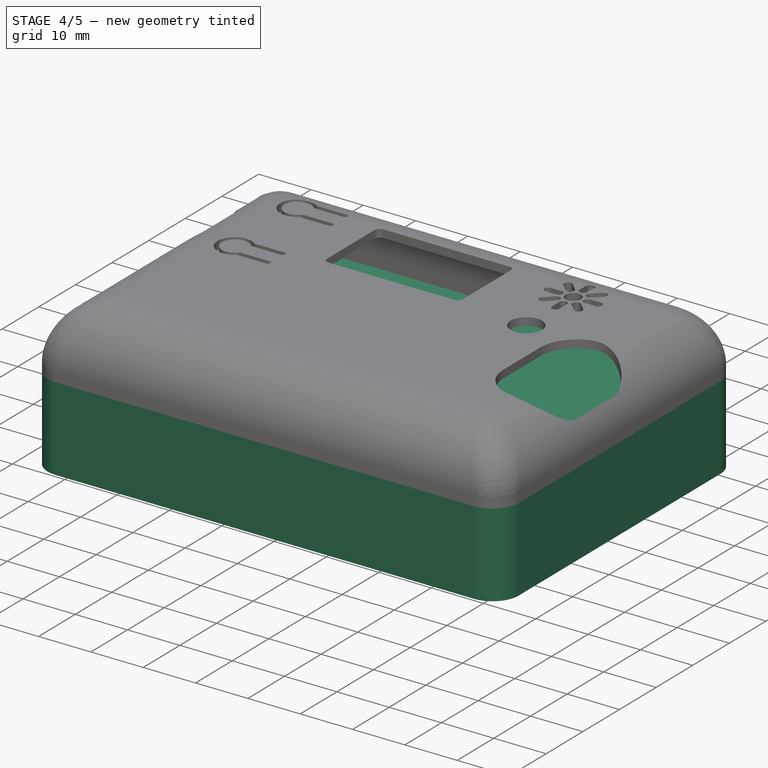
[diagram: stage 4 of 5 — iso view after this stage's code; geometry added in this stage tinted green]
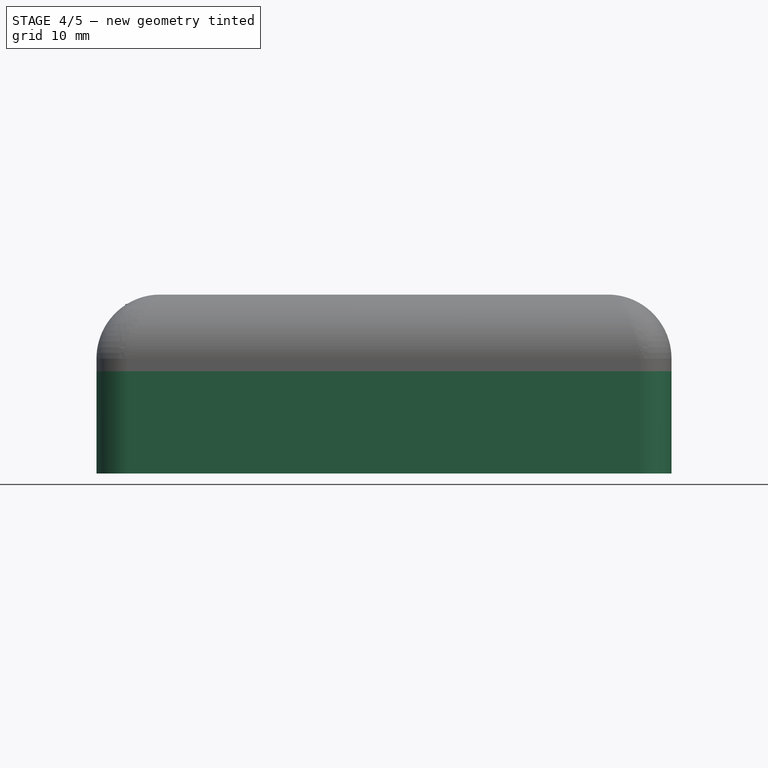
[diagram: stage 4 of 5 — front view after this stage's code; geometry added in this stage tinted green]
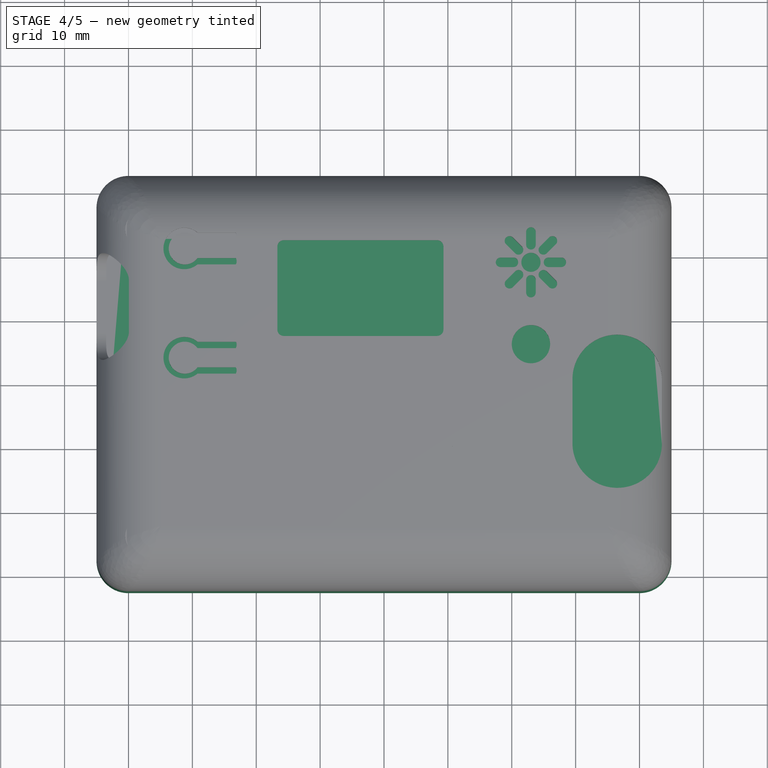
[diagram: stage 4 of 5 — top view after this stage's code; geometry added in this stage tinted green]
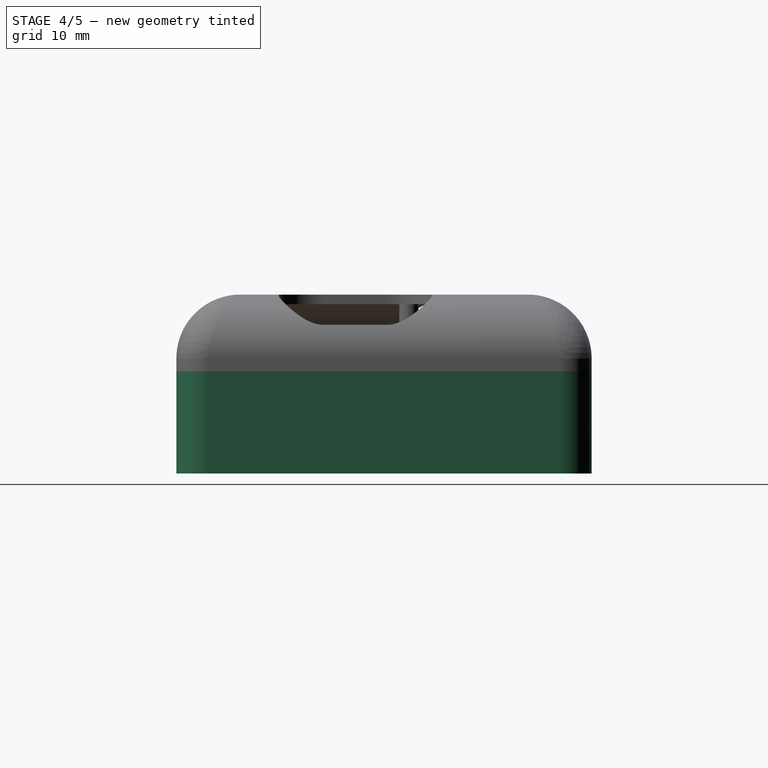
[diagram: stage 4 of 5 — right view after this stage's code; geometry added in this stage tinted green]
FEATURE [Part::Feature] Part__Feature  label="Vibra1"
  shape: bbox 10.97 x 10 x 3 mm, 7 faces (baked)
FEATURE [App::Part] Vibra1  label="Vibra002"
  Group = -> [Part__Feature]
  Origin = -> Origin001
  Placement = pos=(179,-75.5,1.65) rot=(0,0,1;3.14159rad)
FEATURE [Part::Feature] Part__Feature001  label="PinSocket_2x03_P254mm_Vertical"
  shape: bbox 5.08 x 7.62 x 10.1 mm, 196 faces (baked)
FEATURE [App::Part] PinSocket_2x03_P2_54mm_Vertical  label="PinSocket_2x03_P2.54mm_Vertical"
  Group = -> [Part__Feature001]
  Origin = -> Origin002
  Placement = pos=(192.8,-77.62,1.65) rot=(0,0,1;0rad)
FEATURE [Part::Feature] Part__Feature002  label="Buzz1"
  shape: bbox 12 x 12 x 13 mm, 9 faces (baked)
FEATURE [App::Part] Buzz1  label="Buzz002"
  Group = -> [Part__Feature002]
  Origin = -> Origin003
  Placement = pos=(178.5,-61.69,1.65) rot=(0,0,-1;1.5708rad)
FEATURE [Part::Feature] Part__Feature003  label="HiLetGo_GPS_Antenna"
  shape: bbox 25 x 25 x 10 mm, 10 faces (baked)
FEATURE [App::Part] HiLetGo_GPS_Antenna  label="HiLetGo_GPS_Antenna001"
  Group = -> [Part__Feature003]
  Origin = -> Origin004
  Placement = pos=(134,-94.5,1.65) rot=(0,0,1;0rad)
FEATURE [Part::Feature] Part__Feature004  label="heltec_wifi_32_asm2"
  shape: bbox 51.75 x 16.01 x 25.3 mm, 1494 faces (baked)
FEATURE [App::Part] heltec_wifi_32_asm2  label="heltec_wifi_32_asm003"
  Group = -> [Part__Feature004]
  Origin = -> Origin005
  Placement = pos=(146.68,-68.07,4.15) rot=(1,0,0;1.5708rad)
FEATURE [Part::Feature] Part__Feature005  label="HiLetGo_GPS_Module"
  shape: bbox 36 x 26 x 7 mm, 117 faces (baked)
FEATURE [App::Part] HiLetGo_GPS_Module  label="HiLetGo_GPS_Module001"
  Group = -> [Part__Feature005]
  Origin = -> Origin006
  Placement = pos=(167,-94.5,3.15) rot=(0,0,1;3.14159rad)
FEATURE [Part::Feature] Part__Feature006  label="LiPo"
  shape: bbox 40 x 25.99 x 12.99 mm, 14 faces (baked)
FEATURE [App::Part] LiPo  label="LiPo001"
  Group = -> [Part__Feature006]
  Origin = -> Origin007
  Placement = pos=(152.5,-94.5,-5.55) rot=(1,0,0;3.14159rad)
FEATURE [Part::Feature] Part__Feature007  label="LoRa_Antenna"
  shape: bbox 67 x 9.815 x 8.5 mm, 26 faces (baked)
FEATURE [App::Part] LoRa_Antenna  label="LoRa_Antenna001"
  Group = -> [Part__Feature007]
  Origin = -> Origin008
  Placement = pos=(164.5,-62,-6.05) rot=(0,1,0;3.14159rad)
FEATURE [Part::Feature] Part__Feature008  label="DC33_Cnet_Badge_Main_PCB"
  shape: bbox 101 x 58 x 1.6 mm, 72 faces (baked)
FEATURE [App::Part] DC33_Cnet_Badge_Main_1  label="DC33_Cnet_Badge_Main 1"
  Group = -> [Vibra1,PinSocket_2x03_P2_54mm_Vertical,Buzz1,HiLetGo_GPS_Antenna,heltec_wifi_32_asm2,HiLetGo_GPS_Module,LiPo,LoRa_Antenna,Part__Feature008]
  Origin = -> Origin009
  Placement = pos=(-155.5,80.5,0) rot=(0,0,1;0rad)
FEATURE [Sketcher::SketchObject] Sketch  label="Center"
  ArcFitTolerance = 1e-06
  AttachmentSupport = -> [XY_Plane]
  FullyConstrained = true
  MakeInternals = false
  MapMode = 5
  sketch-geometry (4):
    g0: LineSegment StartX=-42 StartY=29 StartZ=0 EndX=-42 EndY=-29 EndZ=0
    g1: LineSegment StartX=-42 StartY=-29 StartZ=0 EndX=42 EndY=-29 EndZ=0
    g2: LineSegment StartX=42 StartY=-29 StartZ=0 EndX=42 EndY=29 EndZ=0
    g3: LineSegment StartX=42 StartY=29 StartZ=0 EndX=-42 EndY=29 EndZ=0
  constraints (10):
    c: Coincident(g0,g1)
    c: Coincident(g1,g2)
    c: Coincident(g2,g3)
    c: Coincident(g3,g0)
    c: Vertical(g2)
    c: Horizontal(g1)
    c: Distance(g3,g3) = 84
    c: DistanceY(g2,g2) = 58
    c: Symmetric(g0,g2,g-2)
    c: Symmetric(g0,g0,g-1)
FEATURE [PartDesign::SubShapeBinder] Binder
  BindCopyOnChange = 0
  BindMode = 0
  ClaimChildren = false
  Context = -> Body [Binder.]
  Fuse = false
  MakeFace = true
  OffsetFill = false
  OffsetIntersection = false
  OffsetJoinType = 0
  OffsetOpenResult = false
  PartialLoad = false
  Refine = true
  Relative = true
  Support = -> [DC33_Cnet_Badge_Main_1[Part__Feature008.Face4,Part__Feature008.Face5]]
  _Version = 2
FEATURE [Sketcher::SketchObject] Sketch001
  ArcFitTolerance = 1e-06
  AttachmentOffset = pos=(0,0,2) rot=(0,0,1;0rad)
  AttachmentSupport = -> [XY_Plane]
  FullyConstrained = true
  MakeInternals = false
  MapMode = 5
  Placement = pos=(0,0,2) rot=(0,0,1;0rad)
  sketch-geometry (12):
    g0: LineSegment StartX=-45 StartY=27.5 StartZ=0 EndX=-45 EndY=-27.5 EndZ=0
    g1: LineSegment StartX=-40 StartY=-32.5 StartZ=0 EndX=40 EndY=-32.5 EndZ=0
    g2: LineSegment StartX=45 StartY=-27.5 StartZ=0 EndX=45 EndY=27.5 EndZ=0
    g3: LineSegment StartX=40 StartY=32.5 StartZ=0 EndX=-40 EndY=32.5 EndZ=0
    g4: ArcOfCircle CenterX=-40 CenterY=27.5 CenterZ=0 NormalX=0 NormalY=0 NormalZ=1 AngleXU=0 Radius=5 StartAngle=1.5708 EndAngle=3.14159
    g5: GeomPoint [constr] X=-45 Y=32.5 Z=0
    g6: ArcOfCircle CenterX=40 CenterY=27.5 CenterZ=0 NormalX=0 NormalY=0 NormalZ=1 AngleXU=0 Radius=5 StartAngle=0 EndAngle=1.5708
    g7: GeomPoint [constr] X=45 Y=32.5 Z=0
    g8: ArcOfCircle CenterX=40 CenterY=-27.5 CenterZ=0 NormalX=0 NormalY=0 NormalZ=1 AngleXU=0 Radius=5 StartAngle=4.71239 EndAngle=6.28319
    g9: GeomPoint [constr] X=45 Y=-32.5 Z=0
    g10: ArcOfCircle CenterX=-40 CenterY=-27.5 CenterZ=0 NormalX=0 NormalY=0 NormalZ=1 AngleXU=0 Radius=5 StartAngle=3.14159 EndAngle=4.71239
    g11: GeomPoint [constr] X=-45 Y=-32.5 Z=0
  constraints (27):
    c: Vertical(g0)
    c: Vertical(g2)
    c: Horizontal(g1)
    c: Horizontal(g3)
    c: DistanceX(g5,g7) = 90
    c: DistanceY(g9,g7) = 65
    c: Symmetric(g5,g9,g-1)
    c: PointOnObject(g5,g0)
    c: PointOnObject(g5,g3)
    c: Tangent(g0,g4) = -1.5708
    c: Tangent(g3,g4) = -1.5708
    c: PointOnObject(g7,g3)
    c: PointOnObject(g7,g2)
    c: Tangent(g3,g6) = -1.5708
    c: Tangent(g2,g6) = -1.5708
    c: PointOnObject(g9,g2)
    c: PointOnObject(g9,g1)
    c: Tangent(g2,g8) = -1.5708
    c: Tangent(g1,g8) = -1.5708
    c: PointOnObject(g11,g1)
    c: PointOnObject(g11,g0)
    c: Tangent(g1,g10) = -1.5708
    c: Tangent(g0,g10) = -1.5708
    c: Radius(g4) = 5
    c: Equal(g6,g4)
    c: Equal(g4,g10)
    c: Equal(g4,g8)
FEATURE [PartDesign::Pad] Pad
  Direction = (0,0,1)
  Length = 16
  Length2 = 10
  Profile = -> Sketch001
  ReferenceAxis = -> Sketch001 [N_Axis]
  Refine = true
  Reversed = true
  Suppressed = false
  Type = 0
FEATURE [Sketcher::SketchObject] Sketch016
  ArcFitTolerance = 1e-06
  AttachmentSupport = -> [Pocket006]
  ExternalGeometry = -> [Pocket006]
  FullyConstrained = true
  MakeInternals = false
  MapMode = 5
  Placement = pos=(0,0,14) rot=(0,0,1;0rad)
  sketch-geometry (4):
    g0: ArcOfCircle CenterX=23 CenterY=23.56 CenterZ=0 NormalX=0 NormalY=0 NormalZ=1 AngleXU=0 Radius=0.75 StartAngle=-1.8e-15 EndAngle=3.14159
    g1: ArcOfCircle CenterX=23 CenterY=21.56 CenterZ=0 NormalX=0 NormalY=0 NormalZ=1 AngleXU=0 Radius=0.75 StartAngle=3.14159 EndAngle=6.28319
    g2: LineSegment StartX=23.75 StartY=23.56 StartZ=0 EndX=23.75 EndY=21.56 EndZ=0
    g3: LineSegment StartX=22.25 StartY=23.56 StartZ=0 EndX=22.25 EndY=21.56 EndZ=0
  constraints (10):
    c: Tangent(g0,g2) = 1.5708
    c: Tangent(g0,g3) = -1.5708
    c: Tangent(g1,g2) = 1.5708
    c: Tangent(g1,g3) = -1.5708
    c: Equal(g0,g1)
    c: Vertical(g3)
    c: Vertical(g1,g-3)
    c: Radius(g0) = 0.75
    c: Distance(g-3,g1) = 2.75
    c: Distance(g2,g2) = 2
FEATURE [PartDesign::Pocket] Pocket007
  BaseFeature = -> Pocket006
  Direction = (0,0,-1)
  Length = 2
  Length2 = 5
  Profile = -> Sketch016
  ReferenceAxis = -> Sketch016 [N_Axis]
  Refine = true
  Suppressed = false
  Type = 0
FEATURE [PartDesign::PolarPattern] PolarPattern
  Angle = 360
  Axis = -> Pocket007 [Edge76]
  BaseFeature = -> Pocket007
  Mode = 0
  Occurrences = 8
  Offset = 120
  Originals = -> [Pocket007]
  Refine = true
  Suppressed = false
  TransformMode = 0
FEATURE [Sketcher::SketchObject] Sketch017
  ArcFitTolerance = 1e-06
  AttachmentSupport = -> [PolarPattern]
  ExternalGeometry = -> [Binder006]
  FullyConstrained = true
  MakeInternals = false
  MapMode = 5
  Placement = pos=(0,0,12.5) rot=(1,0,0;3.14159rad)
  sketch-geometry (16):
    g0: LineSegment StartX=-29.195 StartY=-5.38 StartZ=0 EndX=-23.195 EndY=-5.38 EndZ=0
    g1: LineSegment StartX=-23.195 StartY=-2.38 StartZ=0 EndX=-29.195 EndY=-2.38 EndZ=0
    g2: ArcOfCircle CenterX=-31.195 CenterY=-3.88 CenterZ=0 NormalX=0 NormalY=0 NormalZ=1 AngleXU=0 Radius=2.5 StartAngle=0.643501 EndAngle=5.63968
    g3: LineSegment StartX=-29.195 StartY=-6.38 StartZ=0 EndX=-23.195 EndY=-6.38 EndZ=0
    g4: LineSegment StartX=-23.195 StartY=-1.38 StartZ=0 EndX=-29.195 EndY=-1.38 EndZ=0
    g5: ArcOfCircle CenterX=-31.2717 CenterY=-3.88 CenterZ=0 NormalX=0 NormalY=0 NormalZ=1 AngleXU=0 Radius=3.25 StartAngle=0.877636 EndAngle=5.40555
    g6: ArcOfCircle CenterX=-24.061 CenterY=-5.88 CenterZ=0 NormalX=0 NormalY=0 NormalZ=1 AngleXU=0 Radius=1 StartAngle=5.75959 EndAngle=6.80678
    g7: ArcOfCircle CenterX=-24.061 CenterY=-1.88 CenterZ=0 NormalX=0 NormalY=0 NormalZ=1 AngleXU=0 Radius=1 StartAngle=5.75959 EndAngle=6.80678
    g8: ArcOfCircle CenterX=-31.195 CenterY=-20.98 CenterZ=0 NormalX=0 NormalY=0 NormalZ=1 AngleXU=0 Radius=2.5 StartAngle=0.643501 EndAngle=5.63968
    g9: LineSegment StartX=-29.195 StartY=-19.48 StartZ=0 EndX=-23.195 EndY=-19.48 EndZ=0
    g10: LineSegment StartX=-29.195 StartY=-22.48 StartZ=0 EndX=-23.195 EndY=-22.48 EndZ=0
    g11: LineSegment StartX=-23.195 StartY=-23.48 StartZ=0 EndX=-29.195 EndY=-23.48 EndZ=0
    g12: LineSegment StartX=-23.195 StartY=-18.48 StartZ=0 EndX=-29.195 EndY=-18.48 EndZ=0
    g13: ArcOfCircle CenterX=-31.2717 CenterY=-20.98 CenterZ=0 NormalX=0 NormalY=0 NormalZ=1 AngleXU=0 Radius=3.25 StartAngle=0.877636 EndAngle=5.40555
    g14: ArcOfCircle CenterX=-24.061 CenterY=-18.98 CenterZ=0 NormalX=0 NormalY=0 NormalZ=1 AngleXU=0 Radius=1 StartAngle=5.75959 EndAngle=6.80678
    g15: ArcOfCircle CenterX=-24.061 CenterY=-22.98 CenterZ=0 NormalX=0 NormalY=0 NormalZ=1 AngleXU=0 Radius=1 StartAngle=5.75959 EndAngle=6.80678
  constraints (54):
    c: Horizontal(g0)
    c: Horizontal(g1)
    c: Vertical(g1,g0)
    c: Distance(g0,g1) = 3
    c: Diameter(g2) = 5
    c: Coincident(g2,g0)
    c: Coincident(g2,g1)
    c: Distance(g1,g1) = 6
    c: Coincident(g2,g-4)
    c: Vertical(g1,g0)
    c: Horizontal(g3)
    c: Vertical(g3,g0)
    c: Vertical(g3,g0)
    c: Distance(g0,g3) = 1
    c: Horizontal(g4)
    c: Vertical(g1,g4)
    c: Vertical(g4,g1)
    c: Distance(g1,g4) = 1
    c: Diameter(g5) = 6.5
    c: Coincident(g5,g3)
    c: Coincident(g5,g4)
    c: Diameter(g6) = 2
    c: Diameter(g7) = 2
    c: Coincident(g6,g0)
    c: Coincident(g6,g3)
    c: Coincident(g7,g1)
    c: Coincident(g7,g4)
    c: Coincident(g8,g-6)
    c: Equal(g2,g8)
    c: Horizontal(g9)
    c: Horizontal(g10)
    c: Vertical(g10,g9)
    c: Vertical(g9,g10)
    c: Distance(g9,g9) = 6
    c: Distance(g10,g9) = 3
    c: Coincident(g8,g10)
    c: Coincident(g8,g9)
    c: Horizontal(g11)
    c: Horizontal(g12)
    c: Vertical(g12,g9)
    c: Vertical(g11,g8)
    c: Vertical(g8,g12)
    c: Distance(g9,g12) = 1
    c: Distance(g11,g10) = 1
    c: Vertical(g11,g10)
    c: Diameter(g13) = 6.5
    c: Diameter(g14) = 2
    c: Diameter(g15) = 2
    c: Coincident(g14,g9)
    c: Coincident(g14,g12)
    c: Coincident(g13,g12)
    c: Coincident(g13,g11)
    c: Coincident(g15,g11)
    c: Coincident(g15,g10)
FEATURE [PartDesign::Pocket] Pocket008
  BaseFeature = -> PolarPattern
  Direction = (0,0,1)
  Length = 5
  Length2 = 5
  Profile = -> Sketch017
  ReferenceAxis = -> Sketch017 [N_Axis]
  Refine = true
  Suppressed = false
  Type = 1
FEATURE [Sketcher::SketchObject] Sketch018
  ArcFitTolerance = 1e-06
  AttachmentSupport = -> [Pocket008]
  ExternalGeometry = -> [Binder006]
  FullyConstrained = true
  MakeInternals = false
  MapMode = 5
  Placement = pos=(0,0,12.5) rot=(1,0,0;3.14159rad)
  sketch-geometry (2):
    g0: Circle CenterX=-31.195 CenterY=-3.88 CenterZ=0 NormalX=0 NormalY=0 NormalZ=1 AngleXU=0 Radius=1.5
    g1: Circle CenterX=-31.195 CenterY=-20.98 CenterZ=0 NormalX=0 NormalY=0 NormalZ=1 AngleXU=0 Radius=1.5
  constraints (4):
    c: Coincident(g0,g-4)
    c: Coincident(g1,g-6)
    c: Diameter(g0) = 3
    c: Diameter(g1) = 3
FEATURE [PartDesign::Pad] Pad007
  BaseFeature = -> Pocket008
  Direction = (0,0,-1)
  Length = 4
  Length2 = 10
  Profile = -> Sketch018
  ReferenceAxis = -> Sketch018 [N_Axis]
  Refine = true
  Suppressed = false
  Type = 0
FEATURE [PartDesign::Body] Body  label="Bottom Case"
  AllowCompound = false
  Group = -> [Sketch,Binder,Sketch001,Pad,Fillet,Thickness,Binder001,Sketch002,Pocket,Binder002,Sketch014,Pad005,Sketch015,Pad006,Sketch021,Pocket010]
  Origin = -> Origin
  Tip = -> Pocket010
FEATURE [Part::Part2DObjectPython] ShapeString  # Draft 2D object (typed FeaturePython)
  FontFile = D:/My Drive/Dev/Arduino/DC33_Cnet_Badge/Software/Fonts/seven_segment/Seven Segment.ttf
  Fuse = false
  Justification = 6
  JustificationReference = 0
  KeepLeftMargin = false
  MakeFace = true
  ObliqueAngle = 0
  Placement = pos=(-31.75,-19,0) rot=(0,0,1;0rad)
  ScaleToSize = true
  Size = 10
  String = CompuNet
  Tracking = 0
FEATURE [Sketcher::SketchObject] Sketch022
  ArcFitTolerance = 1e-06
  FullyConstrained = true
  MakeInternals = false
  MapMode = 5
  Placement = pos=(0,0,14) rot=(0,0,1;0rad)
  sketch-geometry (1):
    g0: Circle CenterX=23 CenterY=6 CenterZ=0 NormalX=0 NormalY=0 NormalZ=1 AngleXU=0 Radius=3
  constraints (3):
    c: DistanceX(g-1,g0) = 23
    c: DistanceY(g-1,g0) = 6
    c: Diameter(g0) = 6
FEATURE [PartDesign::Pocket] Pocket014
  BaseFeature = -> Pad007
  Direction = (0,0,-1)
  Length = 5
  Length2 = 5
  Profile = -> Sketch022
  ReferenceAxis = -> Sketch022 [N_Axis]
  Refine = true
  Suppressed = false
  Type = 2
FEATURE [Sketcher::SketchObject] Sketch023
  ArcFitTolerance = 1e-06
  AttachmentSupport = -> [XY_Plane010]
  FullyConstrained = true
  MakeInternals = false
  MapMode = 5
  sketch-geometry (4):
    g0: ArcOfCircle CenterX=36.5 CenterY=0.5 CenterZ=0 NormalX=0 NormalY=0 NormalZ=1 AngleXU=0 Radius=7 StartAngle=1e-16 EndAngle=3.14159
    g1: ArcOfCircle CenterX=36.5 CenterY=-9.5 CenterZ=0 NormalX=0 NormalY=0 NormalZ=1 AngleXU=0 Radius=7 StartAngle=3.14159 EndAngle=6.28319
    g2: LineSegment StartX=43.5 StartY=0.5 StartZ=0 EndX=43.5 EndY=-9.5 EndZ=0
    g3: LineSegment StartX=29.5 StartY=0.5 StartZ=0 EndX=29.5 EndY=-9.5 EndZ=0
  constraints (10):
    c: Tangent(g0,g2) = 1.5708
    c: Tangent(g0,g3) = -1.5708
    c: Tangent(g1,g2) = 1.5708
    c: Tangent(g1,g3) = -1.5708
    c: Equal(g0,g1)
    c: Radius(g0) = 7
    c: Distance(g3,g3) = 10
    c: Vertical(g3)
    c: Distance(g0,g-2) = 36.5
    c: DistanceY(g1,g-1) = 9.5
FEATURE [PartDesign::Pocket] Pocket015
  BaseFeature = -> Pocket014
  Direction = (0,0,-1)
  Length = 5
  Length2 = 5
  Profile = -> Sketch023
  ReferenceAxis = -> Sketch023 [N_Axis]
  Refine = true
  Reversed = true
  Suppressed = false
  Type = 1
FEATURE [PartDesign::Pocket] Pocket016
  BaseFeature = -> Pocket015
  Direction = (0,0,-1)
  Length = 5
  Length2 = 5
  Profile = -> ShapeString
  ReferenceAxis = -> ShapeString [N_Axis]
  Refine = true
  Reversed = true
  Suppressed = false
  Type = 1
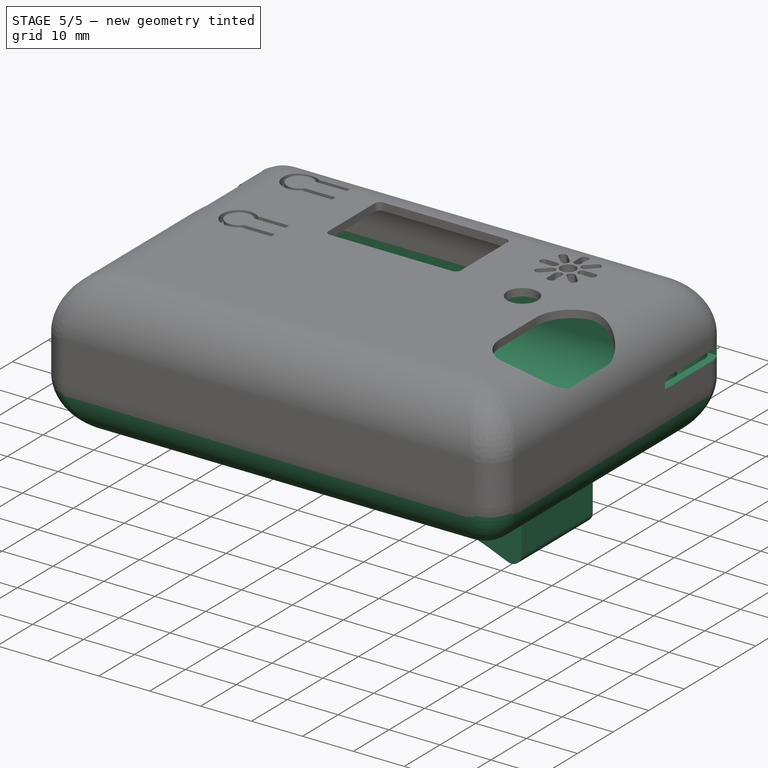
[diagram: stage 5 of 5 — iso view after this stage's code; geometry added in this stage tinted green]
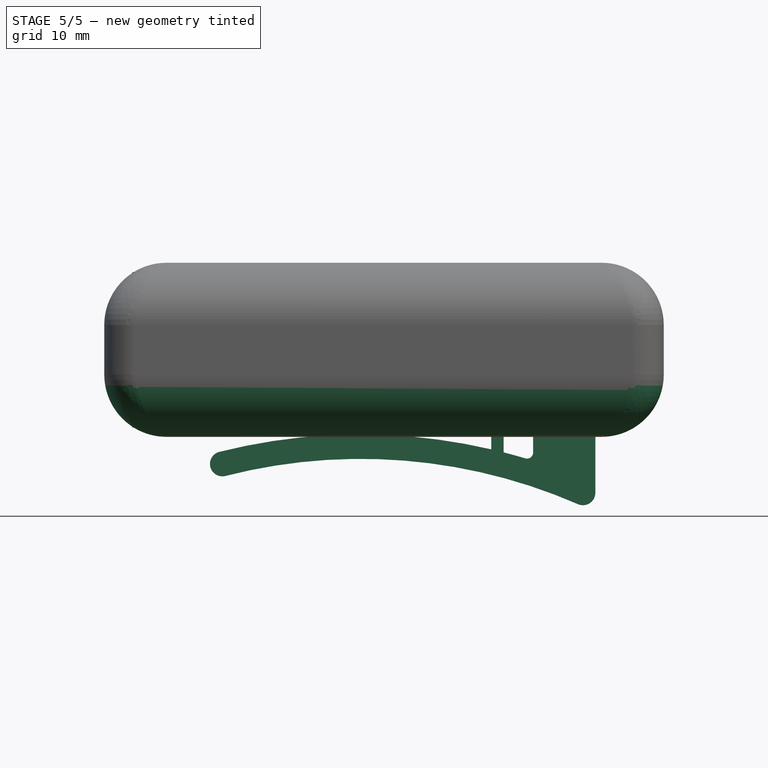
[diagram: stage 5 of 5 — front view after this stage's code; geometry added in this stage tinted green]
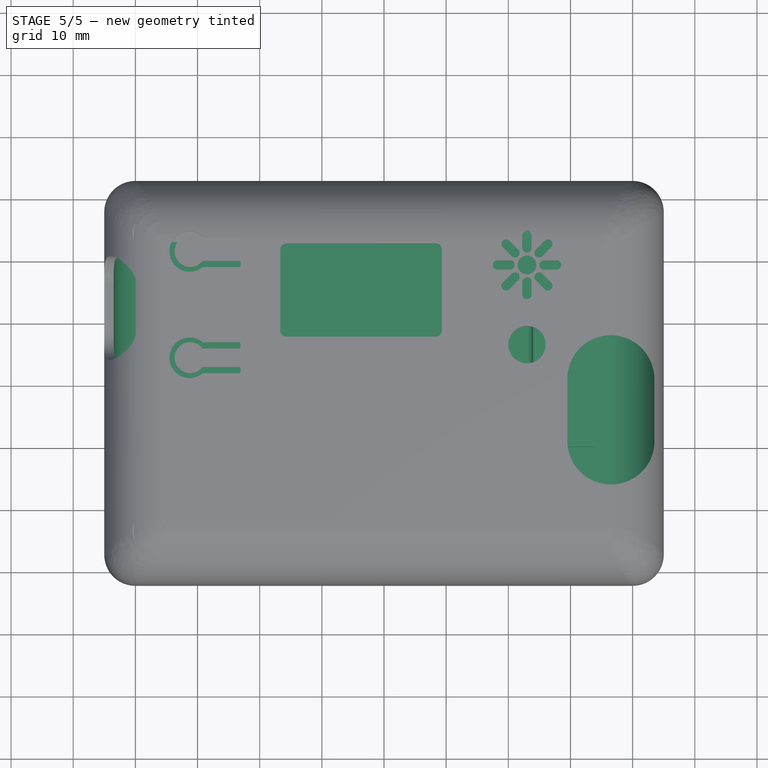
[diagram: stage 5 of 5 — top view after this stage's code; geometry added in this stage tinted green]
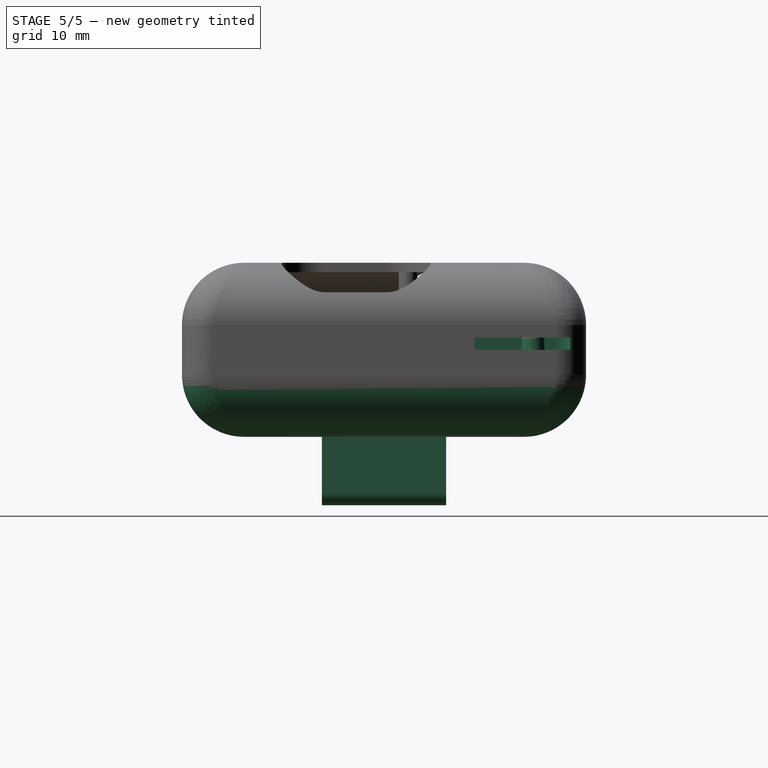
[diagram: stage 5 of 5 — right view after this stage's code; geometry added in this stage tinted green]
FEATURE [PartDesign::Fillet] Fillet
  Base = -> Pad [Edge10]
  BaseFeature = -> Pad
  Radius = 10
  Refine = true
  SupportTransform = false
  Suppressed = false
  UseAllEdges = false
FEATURE [PartDesign::Thickness] Thickness
  Base = -> Fillet [Face4]
  BaseFeature = -> Fillet
  Intersection = false
  Join = 0
  Mode = 0
  Refine = true
  Reversed = true
  SupportTransform = false
  Suppressed = false
  Value = 1.5
FEATURE [PartDesign::SubShapeBinder] Binder001
  BindCopyOnChange = 0
  BindMode = 0
  ClaimChildren = false
  Context = -> Body [Binder001.]
  Fuse = false
  MakeFace = true
  OffsetFill = false
  OffsetIntersection = false
  OffsetJoinType = 0
  OffsetOpenResult = false
  PartialLoad = false
  Refine = true
  Relative = true
  Support = -> [DC33_Cnet_Badge_Main_1[Part__Feature008.Edge1,Part__Feature008.Edge146]]
  _Version = 2
FEATURE [Sketcher::SketchObject] Sketch002
  ArcFitTolerance = 1e-06
  AttachmentSupport = -> [YZ_Plane]
  ExternalGeometry = -> [Binder001]
  FullyConstrained = true
  MakeInternals = false
  MapMode = 5
  Placement = pos=(0,0,0) rot=(0.57735,0.57735,0.57735;2.0944rad)
  sketch-geometry (4):
    g0: LineSegment StartX=14.5 StartY=3 StartZ=0 EndX=14.5 EndY=0 EndZ=0
    g1: LineSegment StartX=14.5 StartY=0 StartZ=0 EndX=30 EndY=0 EndZ=0
    g2: LineSegment StartX=30 StartY=0 StartZ=0 EndX=30 EndY=3 EndZ=0
    g3: LineSegment StartX=30 StartY=3 StartZ=0 EndX=14.5 EndY=3 EndZ=0
  constraints (11):
    c: Coincident(g0,g1)
    c: Coincident(g1,g2)
    c: Coincident(g2,g3)
    c: Coincident(g3,g0)
    c: Vertical(g0)
    c: Vertical(g2)
    c: Horizontal(g3)
    c: Coincident(g0,g-4)
    c: Distance(g2,g2) = 3
    c: Horizontal(g1)
    c: Distance(g-3,g1) = 1
FEATURE [PartDesign::Pocket] Pocket
  BaseFeature = -> Thickness
  Direction = (-1,0,0)
  Length = 5
  Length2 = 5
  Profile = -> Sketch002
  ReferenceAxis = -> Sketch002 [N_Axis]
  Refine = true
  Reversed = true
  Suppressed = false
  Type = 1
FEATURE [Sketcher::SketchObject] Sketch014
  ArcFitTolerance = 1e-06
  AttachmentSupport = -> [Pocket]
  ExternalGeometry = -> [Binder002]
  FullyConstrained = true
  MakeInternals = false
  MapMode = 5
  Placement = pos=(0,0,-12.5) rot=(0,0,1;0rad)
  sketch-geometry (4):
    g0: Circle CenterX=-37.5 CenterY=24 CenterZ=0 NormalX=0 NormalY=0 NormalZ=1 AngleXU=0 Radius=3
    g1: Circle CenterX=37 CenterY=24 CenterZ=0 NormalX=0 NormalY=0 NormalZ=1 AngleXU=0 Radius=3
    g2: Circle CenterX=37 CenterY=-24 CenterZ=0 NormalX=0 NormalY=0 NormalZ=1 AngleXU=0 Radius=3
    g3: Circle CenterX=-37.5 CenterY=-24 CenterZ=0 NormalX=0 NormalY=0 NormalZ=1 AngleXU=0 Radius=3
  constraints (8):
    c: Coincident(g0,g-3)
    c: Coincident(g1,g-4)
    c: Coincident(g2,g-5)
    c: Coincident(g3,g-6)
    c: Diameter(g0) = 6
    c: Equal(g0,g1)
    c: Equal(g0,g2)
    c: Equal(g0,g3)
FEATURE [PartDesign::Pad] Pad005
  BaseFeature = -> Pocket
  Direction = (0,0,1)
  Length = 12.5
  Length2 = 10
  Profile = -> Sketch014
  ReferenceAxis = -> Sketch014 [N_Axis]
  Refine = true
  Suppressed = false
  Type = 0
FEATURE [Sketcher::SketchObject] Sketch015
  ArcFitTolerance = 1e-06
  AttachmentSupport = -> [Pad005]
  ExternalGeometry = -> [Binder002]
  FullyConstrained = true
  MakeInternals = false
  MapMode = 5
  Placement = pos=(0,0,-1.8e-15) rot=(0,0,1;0rad)
  sketch-geometry (4):
    g0: Circle CenterX=-37.5 CenterY=24 CenterZ=0 NormalX=0 NormalY=0 NormalZ=1 AngleXU=0 Radius=1.875
    g1: Circle CenterX=37 CenterY=24 CenterZ=0 NormalX=0 NormalY=0 NormalZ=1 AngleXU=0 Radius=1.875
    g2: Circle CenterX=37 CenterY=-24 CenterZ=0 NormalX=0 NormalY=0 NormalZ=1 AngleXU=0 Radius=1.875
    g3: Circle CenterX=-37.5 CenterY=-24 CenterZ=0 NormalX=0 NormalY=0 NormalZ=1 AngleXU=0 Radius=1.875
  constraints (8):
    c: Coincident(g0,g-3)
    c: Coincident(g1,g-4)
    c: Coincident(g2,g-5)
    c: Coincident(g3,g-6)
    c: Diameter(g0) = 3.75
    c: Equal(g0,g1)
    c: Equal(g0,g2)
    c: Equal(g0,g3)
FEATURE [PartDesign::Pad] Pad006
  BaseFeature = -> Pad005
  Direction = (0,0,1)
  Length = 5
  Length2 = 10
  Profile = -> Sketch015
  ReferenceAxis = -> Sketch015 [N_Axis]
  Refine = true
  Suppressed = false
  TaperAngle = -2
  Type = 0
FEATURE [Sketcher::SketchObject] Sketch020
  ArcFitTolerance = 1e-06
  AttachmentSupport = -> [XZ_Plane011]
  FullyConstrained = true
  MakeInternals = false
  MapMode = 5
  Placement = pos=(0,0,0) rot=(1,0,0;1.5708rad)
  sketch-geometry (18):
    g0: LineSegment StartX=34 StartY=-12 StartZ=0 EndX=26.5 EndY=-12 EndZ=0
    g1: LineSegment StartX=26.5 StartY=-12 StartZ=0 EndX=26.5 EndY=-14 EndZ=0
    g2: LineSegment StartX=26.5 StartY=-14 StartZ=0 EndX=34 EndY=-14 EndZ=0
    g3: LineSegment StartX=34 StartY=-14 StartZ=0 EndX=34 EndY=-23 EndZ=0
    g4: LineSegment StartX=34 StartY=-12 StartZ=0 EndX=34 EndY=-10 EndZ=0
    g5: LineSegment StartX=34 StartY=-10 StartZ=0 EndX=24 EndY=-10 EndZ=0
    g6: LineSegment StartX=24 StartY=-10 StartZ=0 EndX=24 EndY=-16.5 EndZ=0
    g7: ArcOfCircle CenterX=-3.783 CenterY=-106.5 CenterZ=0 NormalX=0 NormalY=0 NormalZ=1 AngleXU=0 Radius=92.9006 StartAngle=1.28155 EndAngle=1.32025
    g8: ArcOfCircle CenterX=23 CenterY=-16.5 CenterZ=0 NormalX=0 NormalY=0 NormalZ=1 AngleXU=0 Radius=1 StartAngle=4.42315 EndAngle=6.28319
    g9: ArcOfCircle CenterX=-3.75129 CenterY=-105 CenterZ=0 NormalX=0 NormalY=0 NormalZ=1 AngleXU=0 Radius=87.4548 StartAngle=1.15965 EndAngle=1.82215
    g10: ArcOfCircle CenterX=32 CenterY=-23 CenterZ=0 NormalX=0 NormalY=0 NormalZ=1 AngleXU=0 Radius=2 StartAngle=4.30125 EndAngle=6.28319
    g11: ArcOfCircle CenterX=-26 CenterY=-18.3562 CenterZ=0 NormalX=0 NormalY=0 NormalZ=1 AngleXU=0 Radius=2 StartAngle=1.81771 EndAngle=4.96374
    g12: LineSegment StartX=17.25 StartY=-16.0117 StartZ=0 EndX=17.25 EndY=-12.3617 EndZ=0
    g13: LineSegment StartX=17.25 StartY=-12.3617 StartZ=0 EndX=16.5 EndY=-12.3617 EndZ=0
    g14: LineSegment StartX=16.5 StartY=-12.3617 StartZ=0 EndX=17.25 EndY=-11.75 EndZ=0
    g15: LineSegment StartX=17.25 StartY=-11.75 StartZ=0 EndX=19.25 EndY=-11.75 EndZ=0
    g16: LineSegment StartX=19.25 StartY=-11.75 StartZ=0 EndX=19.25 EndY=-16.5 EndZ=0
    g17: ArcOfCircle CenterX=-3.783 CenterY=-106.5 CenterZ=0 NormalX=0 NormalY=0 NormalZ=1 AngleXU=0 Radius=92.9006 StartAngle=1.34241 EndAngle=1.81771
  constraints (54):
    c: DistanceX(g-1,g5) = 24
    c: Tangent(g11,g9) = 1.5708
    c: Vertical(g3)
    c: Horizontal(g2)
    c: Horizontal(g0)
    c: Vertical(g1)
    c: Vertical(g4)
    c: Horizontal(g5)
    c: Vertical(g6)
    c: Tangent(g10,g3) = 1.5708
    c: Tangent(g10,g9) = 1.5708
    c: Tangent(g7,g8) = 1.5708
    c: Tangent(g6,g8) = 1.5708
    c: Coincident(g5,g6)
    c: Coincident(g1,g2)
    c: Coincident(g0,g1)
    c: Coincident(g3,g2)
    c: Coincident(g0,g4)
    c: Coincident(g4,g5)
    c: Distance(g1,g1) = 2
    c: Equal(g0,g2)
    c: DistanceX(g0,g0) = 7.5
    c: DistanceX(g5,g5) = 10
    c: DistanceY(g4,g4) = 2
    c: Radius(g11) = 2
    c: Distance(g7,g9) = 4
    c: DistanceX(g11,g-1) = 26
    c: Distance(g10,g-2) = 32
    c: Radius(g8) = 1
    c: Distance(g3,g3) = 9
    c: DistanceY(g3,g-1) = 23
    c: DistanceY(g6,g6) = 6.5
    c: DistanceY(g7,g9) = 1.5
    c: DistanceY(g9,g-1) = 105
    c: PointOnObject(g12,g17)
    c: Vertical(g12)
    c: Coincident(g12,g13)
    c: Horizontal(g13)
    c: Coincident(g13,g14)
    c: Coincident(g14,g15)
    c: Coincident(g15,g16)
    c: Vertical(g16)
    c: Horizontal(g15)
    c: Vertical(g12,g14)
    c: Distance(g15,g15) = 2
    c: DistanceX(g-1,g12) = 17.25
    c: Distance(g13,g13) = 0.75
    c: DistanceY(g12,g12) = 3.65
    c: DistanceY(g16,g15) = 4.75
    c: Equal(g7,g17)
    c: Coincident(g7,g16)
    c: PointOnObject(g17,g12)
    c: Coincident(g7,g17)
    c: Tangent(g11,g17) = -1.5708
FEATURE [PartDesign::Pad] Pad008
  Direction = (0,-1,2e-16)
  Length = 20
  Length2 = 10
  Midplane = true
  Placement = pos=(0,0,0) rot=(1,0,0;1.5708rad)
  Profile = -> Sketch020
  ReferenceAxis = -> Sketch020 [N_Axis]
  Refine = true
  Suppressed = false
  Type = 0
FEATURE [PartDesign::Body] Body002  label="Clip"
  AllowCompound = false
  Group = -> [Sketch020,Pad008]
  Origin = -> Origin011
  Tip = -> Pad008
FEATURE [Sketcher::SketchObject] Sketch021
  ArcFitTolerance = 1e-06
  AttachmentSupport = -> [Pad006]
  FullyConstrained = true
  MakeInternals = false
  MapMode = 5
  Placement = pos=(0,0,-12.5) rot=(0,0,1;0rad)
  sketch-geometry (4):
    g0: LineSegment StartX=17 StartY=10.5 StartZ=0 EndX=17 EndY=-10.5 EndZ=0
    g1: LineSegment StartX=17 StartY=-10.5 StartZ=0 EndX=28 EndY=-10.5 EndZ=0
    g2: LineSegment StartX=28 StartY=-10.5 StartZ=0 EndX=28 EndY=10.5 EndZ=0
    g3: LineSegment StartX=28 StartY=10.5 StartZ=0 EndX=17 EndY=10.5 EndZ=0
  constraints (11):
    c: Coincident(g0,g1)
    c: Coincident(g1,g2)
    c: Coincident(g2,g3)
    c: Coincident(g3,g0)
    c: Vertical(g2)
    c: Horizontal(g1)
    c: Horizontal(g3)
    c: Distance(g1,g1) = 11
    c: Distance(g0,g0) = 21
    c: Symmetric(g0,g0,g-1)
    c: DistanceX(g-1,g0) = 17
FEATURE [PartDesign::Pocket] Pocket010
  BaseFeature = -> Pad006
  Direction = (0,0,-1)
  Length = 5
  Length2 = 5
  Profile = -> Sketch021
  ReferenceAxis = -> Sketch021 [N_Axis]
  Refine = true
  Suppressed = false
  Type = 0
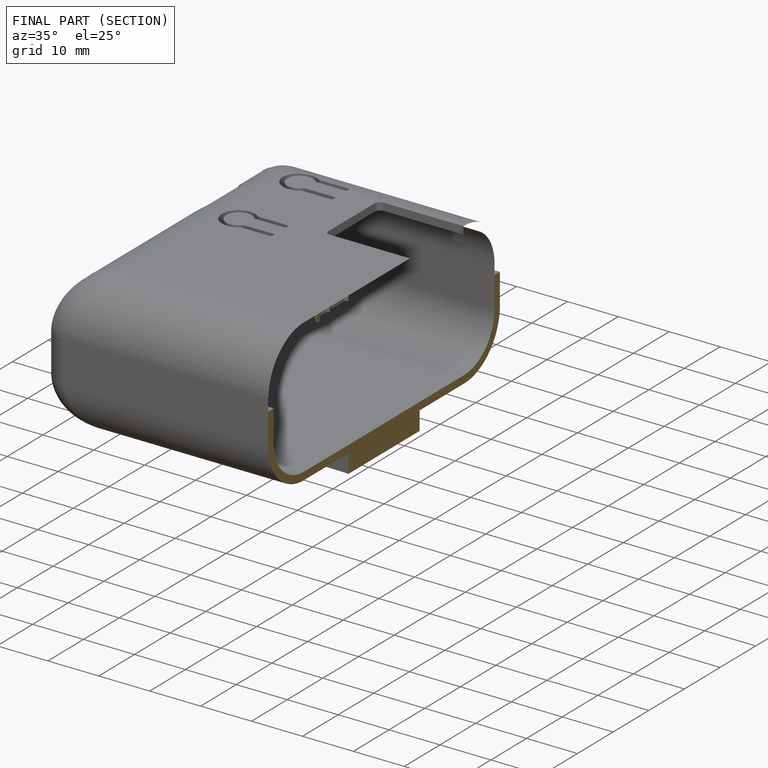
[diagram: finished part — half-section view (interior)]
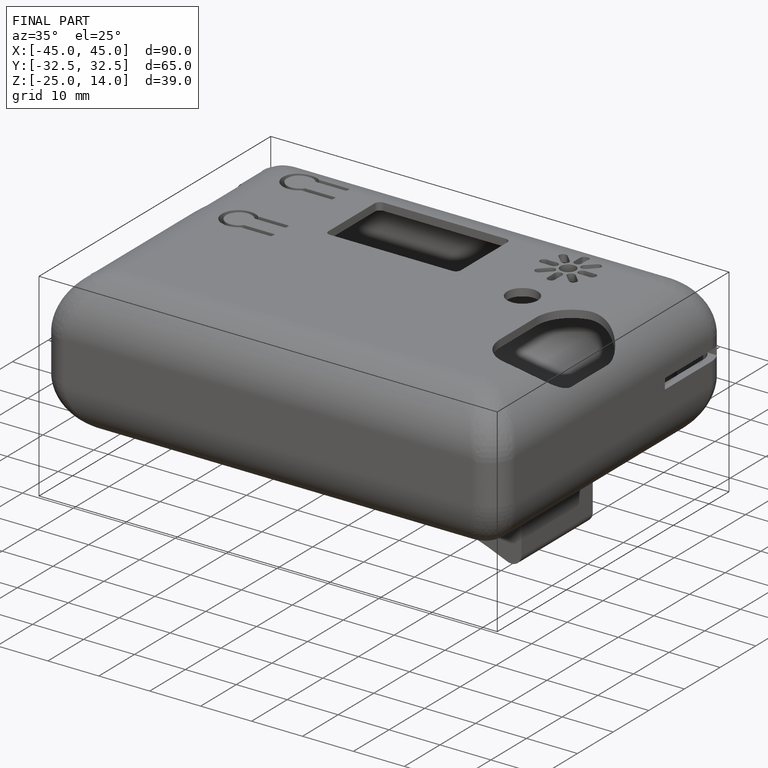
[diagram: finished part — iso view with bounding-box wireframe]
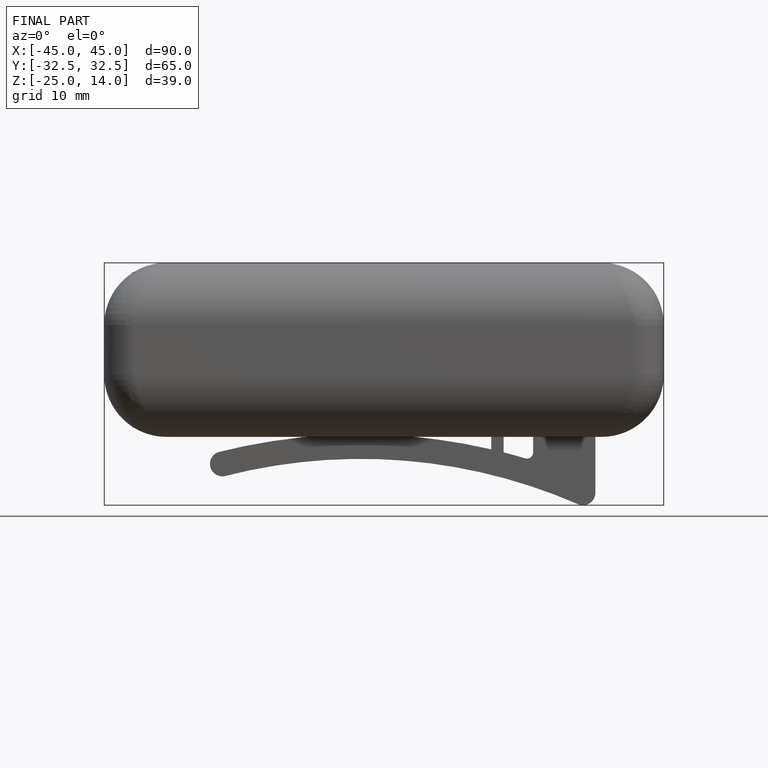
[diagram: finished part — front view with bounding-box wireframe]
